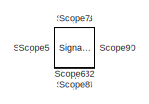
[diagram: root canvas - part 1/3, top left region]
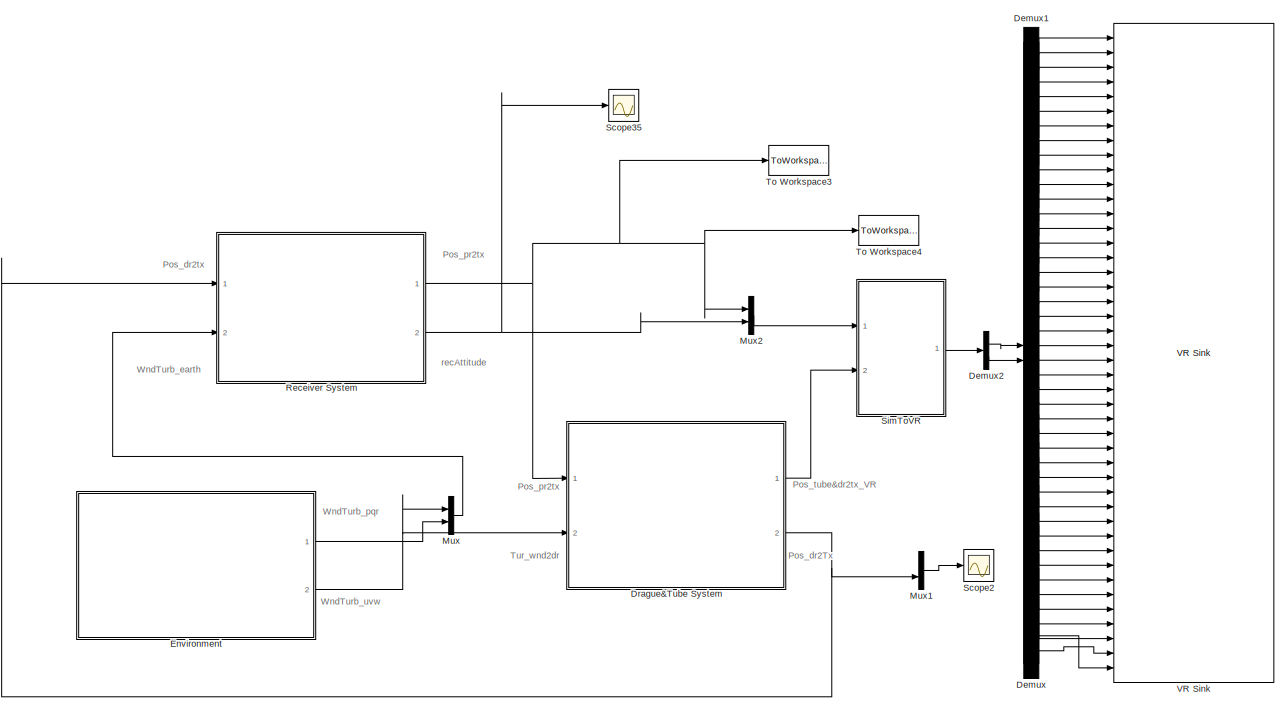
[diagram: root canvas - part 2/3, middle right region]
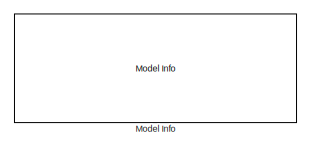
[diagram: root canvas - part 3/3, bottom center region]
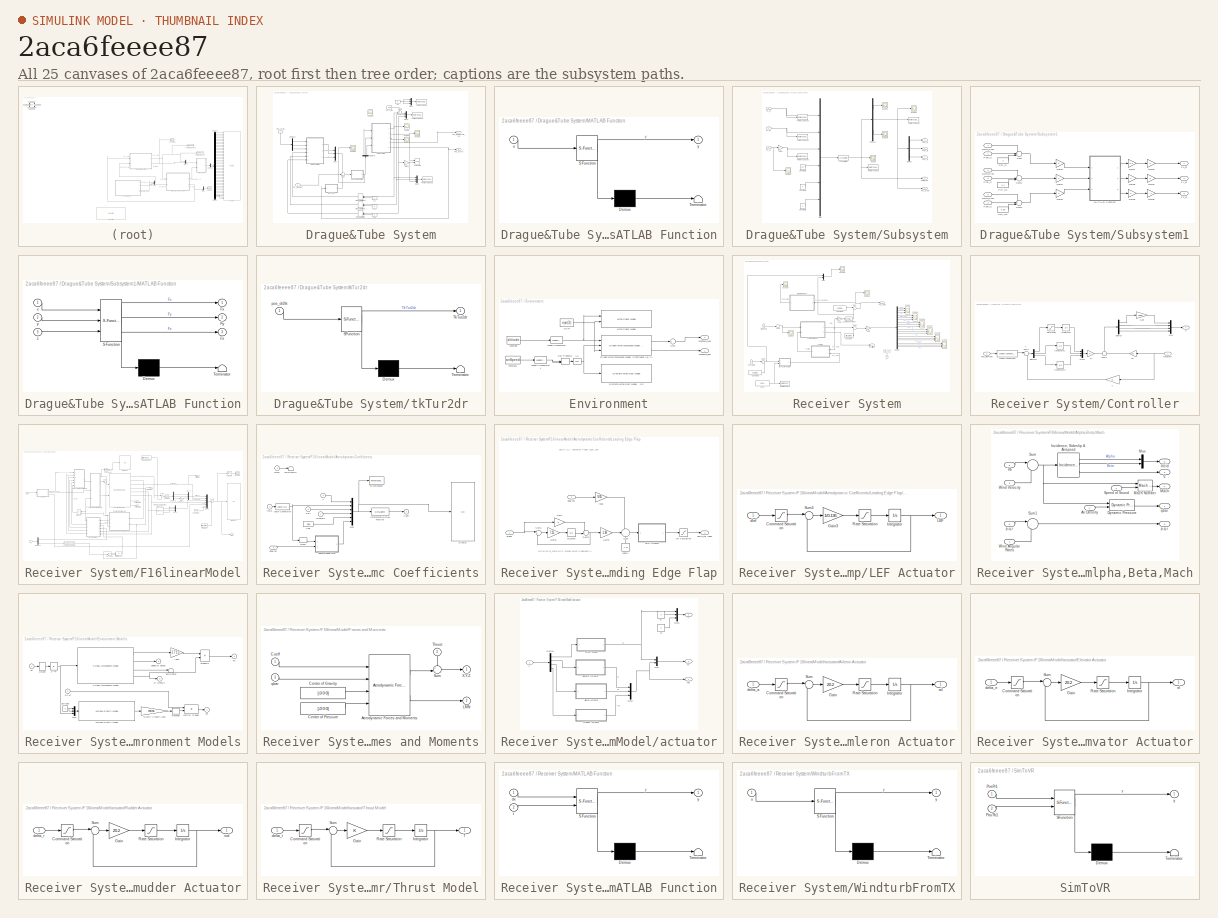
[diagram: thumbnail index - all 25 canvases of the model, root first then tree order]
MODEL slx_2aca6feeee87
KIND model
BLOCK [Demux] Demux
  DisplayOption = bar
  Outputs = 22
  Ports = [1, 22]
BLOCK [Demux] Demux1
  DisplayOption = bar
  Outputs = 22
  Ports = [1, 22]
BLOCK [Demux] Demux2
  DisplayOption = bar
  Outputs = [88,66]
  Ports = [1, 2]
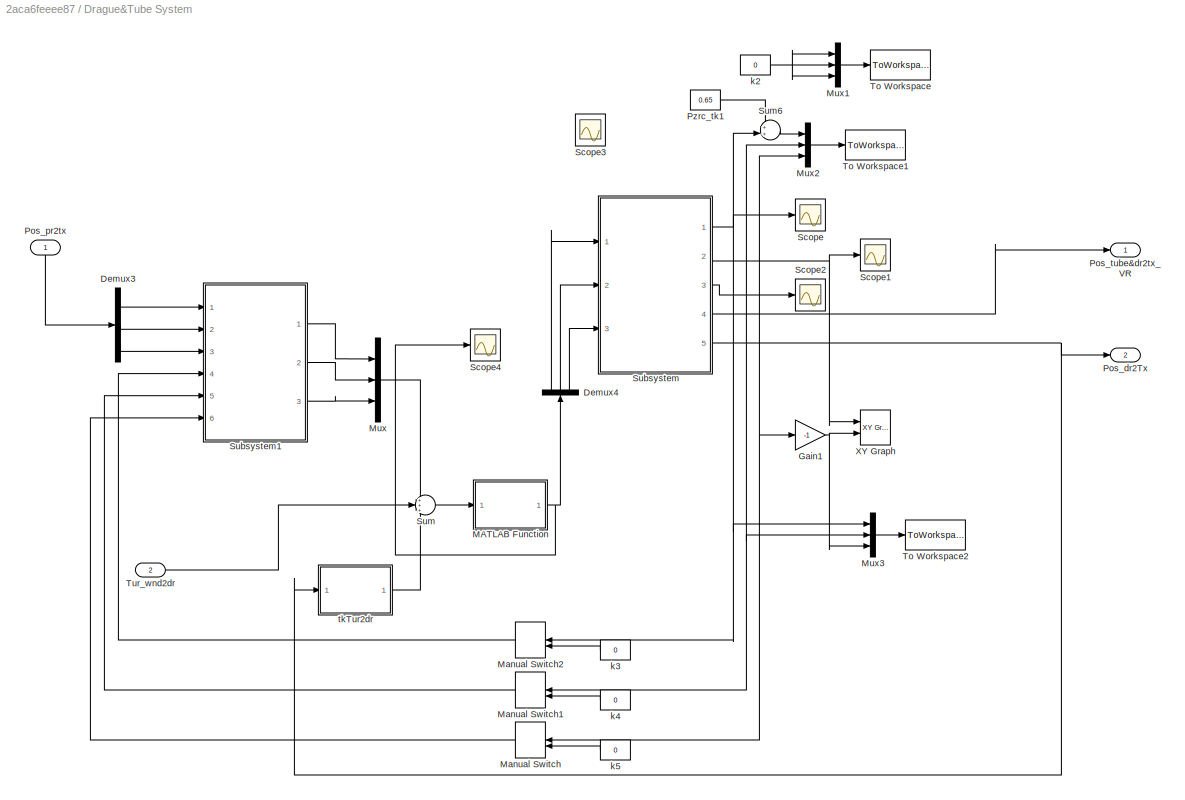
BLOCK [SubSystem] Drague&Tube System
  FunctionWithSeparateData = off
  MaskHideContents = off
  MinAlgLoopOccurrences = off
  Opaque = off
  Ports = [2, 2]
  PropExecContextOutsideSubsystem = off
  RTWSystemCode = Auto
  RequestExecContextInheritance = off
BLOCK [Demux] Drague&Tube System/Demux3
  DisplayOption = bar
  Outputs = 3
  Ports = [1, 3]
BLOCK [Demux] Drague&Tube System/Demux4
  DisplayOption = bar
  Outputs = 3
  Ports = [1, 3]
BLOCK [Gain] Drague&Tube System/Gain1
  Gain = -1
  OutDataTypeStr = Inherit: Inherit via internal rule
  ParamDataTypeStr = Inherit: Inherit via internal rule
  SaturateOnIntegerOverflow = off
BLOCK [SubSystem] Drague&Tube System/MATLAB Function
  ErrorFcn = Stateflow.Translate.translate
  FunctionWithSeparateData = off
  MaskHideContents = off
  MinAlgLoopOccurrences = off
  Opaque = off
  PermitHierarchicalResolution = ExplicitOnly
  Ports = [1, 1]
  PropExecContextOutsideSubsystem = off
  RTWSystemCode = Auto
  RequestExecContextInheritance = off
  SFBlockType = MATLAB Function
  TreatAsAtomicUnit = on
BLOCK [Demux] Drague&Tube System/MATLAB Function/ Demux 
  Outputs = 1
  Ports = [1, 1]
BLOCK [S-Function] Drague&Tube System/MATLAB Function/ SFunction 
  EnableBusSupport = on
  FunctionName = sf_sfun
  PortCounts = [1 2]
  Ports = [1, 2]
  Tag = Stateflow S-Function Bowwave2Drogue_v6_addControl_VR_tkTur2_F16_Real2 4
BLOCK [Terminator] Drague&Tube System/MATLAB Function/ Terminator 
BLOCK [Inport] Drague&Tube System/MATLAB Function/u
  IconDisplay = Port number
BLOCK [Outport] Drague&Tube System/MATLAB Function/y
  IconDisplay = Port number
BLOCK [ManualSwitch] Drague&Tube System/Manual Switch
BLOCK [ManualSwitch] Drague&Tube System/Manual Switch1
BLOCK [ManualSwitch] Drague&Tube System/Manual Switch2
BLOCK [Mux] Drague&Tube System/Mux
  DisplayOption = bar
  Inputs = 3
  Ports = [3, 1]
BLOCK [Mux] Drague&Tube System/Mux1
  DisplayOption = bar
  Inputs = 3
  Ports = [3, 1]
BLOCK [Mux] Drague&Tube System/Mux2
  DisplayOption = bar
  Inputs = 3
  Ports = [3, 1]
BLOCK [Mux] Drague&Tube System/Mux3
  DisplayOption = bar
  Inputs = 3
  Ports = [3, 1]
BLOCK [Outport] Drague&Tube System/Pos_dr2Tx
  IconDisplay = Port number
  Port = 2
BLOCK [Inport] Drague&Tube System/Pos_pr2tx
  IconDisplay = Port number
BLOCK [Outport] Drague&Tube System/Pos_tube&dr2tx_VR
  IconDisplay = Port number
BLOCK [Constant] Drague&Tube System/Pzrc_tk1
  Value = 0.65
BLOCK [Scope] Drague&Tube System/Scope
  DataFormat = StructureWithTime
  Floating = off
  NumInputPorts = 1
  Ports = [1]
  SampleTime = 0
  ShowLegends = off
  YMax = -13.295
  YMin = -13.32
BLOCK [Scope] Drague&Tube System/Scope1
  DataFormat = StructureWithTime
  Floating = off
  NumInputPorts = 1
  Ports = [1]
  SampleTime = 0
  SaveName = ScopeData1
  ShowLegends = off
  YMax = 1
  YMin = -1
BLOCK [Scope] Drague&Tube System/Scope2
  DataFormat = StructureWithTime
  Floating = off
  NumInputPorts = 1
  Ports = [1]
  SampleTime = 0
  SaveName = ScopeData2
  ShowLegends = off
  YMax = 5.22
  YMin = 5.155
BLOCK [Scope] Drague&Tube System/Scope3
  DataFormat = StructureWithTime
  Floating = off
  NumInputPorts = 1
  Ports = [1]
  SampleTime = 0
  SaveName = ScopeData17
  ShowLegends = off
  YMax = -9
  YMin = -15.5
BLOCK [Scope] Drague&Tube System/Scope4
  DataFormat = StructureWithTime
  Floating = off
  NumInputPorts = 1
  Ports = [1]
  SampleTime = 0
  SaveName = ScopeData20
  ShowLegends = off
  TimeRange = 50
  YMax = 15
  YMin = -50
BLOCK [SubSystem] Drague&Tube System/Subsystem
  FunctionWithSeparateData = off
  MaskHideContents = off
  MinAlgLoopOccurrences = off
  Opaque = off
  Ports = [3, 5]
  PropExecContextOutsideSubsystem = off
  RTWSystemCode = Auto
  RequestExecContextInheritance = off
BLOCK [Constant] Drague&Tube System/Subsystem/Constant3
  Value = 120
BLOCK [Constant] Drague&Tube System/Subsystem/Constant4
  Value = 0
BLOCK [Constant] Drague&Tube System/Subsystem/Constant5
  Value = 0
BLOCK [Demux] Drague&Tube System/Subsystem/Demux
  DisplayOption = bar
  Outputs = 3
  Ports = [1, 3]
BLOCK [Demux] Drague&Tube System/Subsystem/Demux1
  DisplayOption = bar
  Outputs = [57,3,40]
  Ports = [1, 3]
BLOCK [Inport] Drague&Tube System/Subsystem/Fx_dr
  IconDisplay = Port number
BLOCK [Inport] Drague&Tube System/Subsystem/Fy_dr
  IconDisplay = Port number
  Port = 2
BLOCK [Inport] Drague&Tube System/Subsystem/Fz_dr
  IconDisplay = Port number
  Port = 3
BLOCK [Gain] Drague&Tube System/Subsystem/Gain1
  Gain = -1
  OutDataTypeStr = Inherit: Inherit via internal rule
  ParamDataTypeStr = Inherit: Inherit via internal rule
  SaturateOnIntegerOverflow = off
BLOCK [Mux] Drague&Tube System/Subsystem/Mux
  DisplayOption = bar
  Inputs = 6
  Ports = [6, 1]
BLOCK [Outport] Drague&Tube System/Subsystem/Pos_dr2tx
  IconDisplay = Port number
  Port = 5
BLOCK [Outport] Drague&Tube System/Subsystem/Pxdr_tk
  IconDisplay = Port number
BLOCK [Outport] Drague&Tube System/Subsystem/Pydr_tk
  IconDisplay = Port number
  Port = 2
BLOCK [Outport] Drague&Tube System/Subsystem/Pzdr_tk
  IconDisplay = Port number
  Port = 3
BLOCK [S-Function] Drague&Tube System/Subsystem/S-Function
  EnableBusSupport = off
  FunctionName = hose3D_n_air_Fv_correction
  Ports = [1, 1]
BLOCK [Scope] Drague&Tube System/Subsystem/Scope
  DataFormat = StructureWithTime
  Floating = off
  NumInputPorts = 1
  Ports = [1]
  SampleTime = 0
  SaveName = ScopeData4
  ShowLegends = off
  YMax = 1
  YMin = -14
  ZoomMode = yonly
BLOCK [Scope] Drague&Tube System/Subsystem/Scope1
  DataFormat = StructureWithTime
  Floating = off
  NumInputPorts = 1
  Ports = [1]
  SampleTime = 0
  SaveName = ScopeData3
  ShowLegends = off
  YMax = 1
  YMin = -14
  ZoomMode = yonly
BLOCK [Scope] Drague&Tube System/Subsystem/Scope2
  DataFormat = StructureWithTime
  Floating = off
  NumInputPorts = 1
  Ports = [1]
  SampleTime = 0
  SaveName = ScopeData8
  ShowLegends = off
  YMax = 0
  YMin = -65
BLOCK [Scope] Drague&Tube System/Subsystem/Scope3
  DataFormat = StructureWithTime
  Floating = off
  NumInputPorts = 1
  Ports = [1]
  SampleTime = 0
  SaveName = ScopeData6
  ShowLegends = off
  YMax = 1350
  YMin = 1025
  ZoomMode = yonly
BLOCK [Scope] Drague&Tube System/Subsystem/Scope6
  DataFormat = StructureWithTime
  Floating = off
  NumInputPorts = 1
  Ports = [1]
  SampleTime = 0
  SaveName = ScopeData9
  ShowLegends = off
  YMax = 1
  YMin = -14
  ZoomMode = yonly
BLOCK [ToWorkspace] Drague&Tube System/Subsystem/To Workspace
  MaxDataPoints = inf
  Ports = [1]
  SampleTime = -1
  VariableName = output_3D
BLOCK [ToWorkspace] Drague&Tube System/Subsystem/To Workspace1
  MaxDataPoints = inf
  Ports = [1]
  SampleTime = -1
  VariableName = output_dr1
BLOCK [ToWorkspace] Drague&Tube System/Subsystem/To Workspace3
  MaxDataPoints = inf
  Ports = [1]
  SampleTime = -1
  VariableName = input_x
BLOCK [ToWorkspace] Drague&Tube System/Subsystem/To Workspace4
  MaxDataPoints = inf
  Ports = [1]
  SampleTime = -1
  VariableName = input_y
BLOCK [ToWorkspace] Drague&Tube System/Subsystem/To Workspace5
  MaxDataPoints = inf
  Ports = [1]
  SampleTime = -1
  VariableName = input_z
BLOCK [Outport] Drague&Tube System/Subsystem/output_3D
  IconDisplay = Port number
  Port = 4
BLOCK [SubSystem] Drague&Tube System/Subsystem1
  FunctionWithSeparateData = off
  MaskHideContents = off
  MinAlgLoopOccurrences = off
  Opaque = off
  Ports = [6, 3]
  PropExecContextOutsideSubsystem = off
  RTWSystemCode = Auto
  RequestExecContextInheritance = off
BLOCK [Inport] Drague&Tube System/Subsystem1/Delta_Pxdr
  IconDisplay = Port number
  Port = 4
BLOCK [Inport] Drague&Tube System/Subsystem1/Delta_Pydr
  IconDisplay = Port number
  Port = 5
BLOCK [Inport] Drague&Tube System/Subsystem1/Delta_Pzdr
  IconDisplay = Port number
  Port = 6
BLOCK [Outport] Drague&Tube System/Subsystem1/Fx_dr
  IconDisplay = Port number
  SignalType = real
BLOCK [Outport] Drague&Tube System/Subsystem1/Fy_dr
  IconDisplay = Port number
  Port = 2
  SignalType = real
BLOCK [Outport] Drague&Tube System/Subsystem1/Fz_dr
  IconDisplay = Port number
  Port = 3
  SignalType = real
BLOCK [Gain] Drague&Tube System/Subsystem1/Gain1
  OutDataTypeStr = Inherit: Inherit via internal rule
  ParamDataTypeStr = Inherit: Inherit via internal rule
  SaturateOnIntegerOverflow = off
BLOCK [Gain] Drague&Tube System/Subsystem1/Gain2
  OutDataTypeStr = Inherit: Inherit via internal rule
  ParamDataTypeStr = Inherit: Inherit via internal rule
  SaturateOnIntegerOverflow = off
BLOCK [Gain] Drague&Tube System/Subsystem1/Gain3
  OutDataTypeStr = Inherit: Inherit via internal rule
  ParamDataTypeStr = Inherit: Inherit via internal rule
  SaturateOnIntegerOverflow = off
BLOCK [Gain] Drague&Tube System/Subsystem1/Gain4
  OutDataTypeStr = Inherit: Inherit via internal rule
  ParamDataTypeStr = Inherit: Inherit via internal rule
  SaturateOnIntegerOverflow = off
BLOCK [Gain] Drague&Tube System/Subsystem1/Gain5
  Gain = -1
  OutDataTypeStr = Inherit: Inherit via internal rule
  ParamDataTypeStr = Inherit: Inherit via internal rule
  SaturateOnIntegerOverflow = off
BLOCK [Gain] Drague&Tube System/Subsystem1/Gain6
  OutDataTypeStr = Inherit: Inherit via internal rule
  ParamDataTypeStr = Inherit: Inherit via internal rule
  SaturateOnIntegerOverflow = off
BLOCK [Gain] Drague&Tube System/Subsystem1/Gain7
  Gain = 0.2
  OutDataTypeStr = Inherit: Inherit via internal rule
  ParamDataTypeStr = Inherit: Inherit via internal rule
  SaturateOnIntegerOverflow = off
BLOCK [Gain] Drague&Tube System/Subsystem1/Gain8
  OutDataTypeStr = Inherit: Inherit via internal rule
  ParamDataTypeStr = Inherit: Inherit via internal rule
  SaturateOnIntegerOverflow = off
BLOCK [Gain] Drague&Tube System/Subsystem1/Gain9
  OutDataTypeStr = Inherit: Inherit via internal rule
  ParamDataTypeStr = Inherit: Inherit via internal rule
  SaturateOnIntegerOverflow = off
BLOCK [SubSystem] Drague&Tube System/Subsystem1/MATLAB Function
  ErrorFcn = Stateflow.Translate.translate
  FunctionWithSeparateData = off
  MaskHideContents = off
  MinAlgLoopOccurrences = off
  Opaque = off
  PermitHierarchicalResolution = ExplicitOnly
  Ports = [3, 3]
  PropExecContextOutsideSubsystem = off
  RTWSystemCode = Auto
  RequestExecContextInheritance = off
  SFBlockType = MATLAB Function
  TreatAsAtomicUnit = on
BLOCK [Demux] Drague&Tube System/Subsystem1/MATLAB Function/ Demux 
  Outputs = 1
  Ports = [1, 1]
BLOCK [S-Function] Drague&Tube System/Subsystem1/MATLAB Function/ SFunction 
  EnableBusSupport = on
  FunctionName = sf_sfun
  PortCounts = [3 4]
  Ports = [3, 4]
  Tag = Stateflow S-Function Bowwave2Drogue_v6_addControl_VR_tkTur2_F16_Real2 2
BLOCK [Terminator] Drague&Tube System/Subsystem1/MATLAB Function/ Terminator 
BLOCK [Outport] Drague&Tube System/Subsystem1/MATLAB Function/Fx
  IconDisplay = Port number
BLOCK [Outport] Drague&Tube System/Subsystem1/MATLAB Function/Fy
  IconDisplay = Port number
  Port = 2
BLOCK [Outport] Drague&Tube System/Subsystem1/MATLAB Function/Fz
  IconDisplay = Port number
  Port = 3
BLOCK [Inport] Drague&Tube System/Subsystem1/MATLAB Function/x
  IconDisplay = Port number
BLOCK [Inport] Drague&Tube System/Subsystem1/MATLAB Function/y
  IconDisplay = Port number
  Port = 2
BLOCK [Inport] Drague&Tube System/Subsystem1/MATLAB Function/z
  IconDisplay = Port number
  Port = 3
BLOCK [Inport] Drague&Tube System/Subsystem1/Pxdr_rc
  IconDisplay = Port number
BLOCK [Constant] Drague&Tube System/Subsystem1/Pxfl_rc
  Value = 2
BLOCK [Inport] Drague&Tube System/Subsystem1/Pydr_rc
  IconDisplay = Port number
  Port = 2
BLOCK [Constant] Drague&Tube System/Subsystem1/Pyfl_rc1
  Value = 0.4
BLOCK [Inport] Drague&Tube System/Subsystem1/Pzdr_rc
  IconDisplay = Port number
  Port = 3
BLOCK [Constant] Drague&Tube System/Subsystem1/Pzfl_rc2
  Value = 0.86
BLOCK [Sum] Drague&Tube System/Subsystem1/Sum
  IconShape = round
  InputSameDT = off
  Inputs = -++
  OutDataTypeStr = Inherit: Inherit via internal rule
  Ports = [3, 1]
  SaturateOnIntegerOverflow = off
BLOCK [Sum] Drague&Tube System/Subsystem1/Sum1
  IconShape = round
  InputSameDT = off
  Inputs = +-+
  OutDataTypeStr = Inherit: Inherit via internal rule
  Ports = [3, 1]
  SaturateOnIntegerOverflow = off
BLOCK [Sum] Drague&Tube System/Subsystem1/Sum2
  IconShape = round
  InputSameDT = off
  Inputs = -++
  OutDataTypeStr = Inherit: Inherit via internal rule
  Ports = [3, 1]
  SaturateOnIntegerOverflow = off
BLOCK [Sum] Drague&Tube System/Sum
  IconShape = round
  InputSameDT = off
  Inputs = +++
  OutDataTypeStr = Inherit: Inherit via internal rule
  Ports = [3, 1]
  SaturateOnIntegerOverflow = off
BLOCK [Sum] Drague&Tube System/Sum6
  IconShape = round
  InputSameDT = off
  Inputs = ++|
  OutDataTypeStr = Inherit: Inherit via internal rule
  Ports = [2, 1]
  SaturateOnIntegerOverflow = off
BLOCK [ToWorkspace] Drague&Tube System/To Workspace
  MaxDataPoints = inf
  Ports = [1]
  SampleTime = -1
  VariableName = alt
BLOCK [ToWorkspace] Drague&Tube System/To Workspace1
  MaxDataPoints = inf
  Ports = [1]
  SampleTime = -1
  VariableName = pos_Tg
BLOCK [ToWorkspace] Drague&Tube System/To Workspace2
  MaxDataPoints = inf
  Ports = [1]
  SampleTime = -1
  VariableName = pos_dr
BLOCK [Inport] Drague&Tube System/Tur_wnd2dr
  IconDisplay = Port number
  Port = 2
  SignalType = real
BLOCK [Reference] Drague&Tube System/XY Graph  REF=simulink/Sinks/XY Graph
  Ports = [2]
  SourceBlock = simulink/Sinks/XY Graph
  SourceType = XY scope.
  st = -1
  xmax = 1
  xmin = -1
  ymax = 1-4.65
  ymin = -1-4.65
BLOCK [Constant] Drague&Tube System/k2
  Value = 0
BLOCK [Constant] Drague&Tube System/k3
  Value = 0
BLOCK [Constant] Drague&Tube System/k4
  Value = 0
BLOCK [Constant] Drague&Tube System/k5
  Value = 0
BLOCK [SubSystem] Drague&Tube System/tkTur2dr
  ErrorFcn = Stateflow.Translate.translate
  FunctionWithSeparateData = off
  MaskHideContents = off
  MinAlgLoopOccurrences = off
  Opaque = off
  PermitHierarchicalResolution = ExplicitOnly
  Ports = [1, 1]
  PropExecContextOutsideSubsystem = off
  RTWSystemCode = Auto
  RequestExecContextInheritance = off
  SFBlockType = MATLAB Function
  TreatAsAtomicUnit = on
BLOCK [Demux] Drague&Tube System/tkTur2dr/ Demux 
  Outputs = 1
  Ports = [1, 1]
BLOCK [S-Function] Drague&Tube System/tkTur2dr/ SFunction 
  EnableBusSupport = on
  FunctionName = sf_sfun
  PortCounts = [1 2]
  Ports = [1, 2]
  Tag = Stateflow S-Function Bowwave2Drogue_v6_addControl_VR_tkTur2_F16_Real2 6
BLOCK [Terminator] Drague&Tube System/tkTur2dr/ Terminator 
BLOCK [Outport] Drague&Tube System/tkTur2dr/TkTur2dr
  IconDisplay = Port number
BLOCK [Inport] Drague&Tube System/tkTur2dr/pos_dr2tk
  IconDisplay = Port number
BLOCK [SubSystem] Environment
  FunctionWithSeparateData = off
  MaskHideContents = off
  MinAlgLoopOccurrences = off
  Opaque = off
  Ports = [0, 2]
  PropExecContextOutsideSubsystem = off
  RTWSystemCode = Auto
  RequestExecContextInheritance = off
BLOCK [Constant] Environment/DCM
  Value = eye(3)
BLOCK [Reference] Environment/Discrete Wind Gust Model - On  REF=aerolibwind2/Discrete Wind Gust Model
  Gx = on
  Gy = on
  Gz = on
  Ports = [1, 1]
  SourceBlock = aerolibwind2/Discrete Wind Gust Model
  SourceType = Discrete Wind Gust Model
  d_m = [120 120 80]
  t_0 = 20
  units = Metric (MKS)
  v_m = [3.5 3.0 3.0]
BLOCK [DotProduct] Environment/Dot Product2
  InputSameDT = off
  OutDataTypeStr = Inherit: Inherit via internal rule
  SaturateOnIntegerOverflow = on
BLOCK [Reference] Environment/Dryden Wind Turbulence Model (Continuous (+q -r))  REF=aerolibwind2/Dryden Wind Turbulence Model 
(Continuous (+q -r))
  L_high = 1000
  Ports = [3, 2]
  Seed = 1+fix(3650*rand(1,4))
  SourceBlock = aerolibwind2/Dryden Wind Turbulence Model \n(Continuous (+q -r))
  SourceType = Wind Turbulence Model
  T_on = on
  TurbProb = 10^-1
  W20 = 5
  Wdeg = 0
  Wingspan = 6
  model = Continuous Dryden (+q -r)
  spec = MIL-F-8785C
  ts = 0.02
  units = Metric (MKS)
BLOCK [Reference] Environment/Length Conversion  REF=aerolibconvert2/Length Conversion
  IU = ft
  OU = m
  Ports = [1, 1]
  SourceBlock = aerolibconvert2/Length Conversion
  SourceType = Length Conversion
BLOCK [Reference] Environment/Length Conversion1  REF=aerolibconvert2/Length Conversion
  IU = ft
  OU = m
  Ports = [1, 1]
  SourceBlock = aerolibconvert2/Length Conversion
  SourceType = Length Conversion
BLOCK [Sum] Environment/Sum
  IconShape = round
  Inputs = +++
  Ports = [3, 1]
BLOCK [Math] Environment/V2
  Operator = sqrt
  Ports = [1, 1]
BLOCK [Reference] Environment/Wind Shear Model  REF=aerolibwind2/Wind Shear Model
  Ports = [2, 1]
  SourceBlock = aerolibwind2/Wind Shear Model
  SourceType = Wind Shear Model
  W_20 = 1
  Wdeg = 0
  phase = Category C - Terminal Flight Phase
  units = Metric (MKS)
BLOCK [Outport] Environment/WndTurb_pqr
  IconDisplay = Port number
BLOCK [Outport] Environment/WndTurb_uvw
  IconDisplay = Port number
  Port = 2
BLOCK [Constant] Environment/constan1
  Value = airSpeed
BLOCK [Constant] Environment/constant
  Value = altitude
BLOCK [Reference] Model Info  REF=simulink/Model-Wide
Utilities/Model Info
  BlockCM = None
  DisplayStringWithTags = Ppr_rc=[6.06 0.54 -0.86]\nPns_rc=[8.00 0.00  0.00]\nPfl_rc=[3.75 0.00 -0.86]\nPdr0_tk=[-13.549 0.00 5]
  Frame = on
  HorizontalTextAlignment = Center
  InitialBlockCM = None
  LeftAlignmentValue = 0.5
  MaskDisplayString = Ppr_rc=[6.06 0.54 -0.86]\nPns_rc=[8.00 0.00  0.00]\nPfl_rc=[3.75 0.00 -0.86]\nPdr0_tk=[-13.549 0.00 5]
  Ports = []
  SourceBlock = simulink/Model-Wide\nUtilities/Model Info
  SourceBlockDiagram = Bowwave2Drogue_v6_addControl_VR_tkTur2_F16_Real2
  SourceType = CMBlock
  TagMaxNumber = 20
BLOCK [Mux] Mux
  DisplayOption = bar
  Inputs = 2
  Ports = [2, 1]
BLOCK [Mux] Mux1
  DisplayOption = bar
  Inputs = 2
  Ports = [2, 1]
BLOCK [Mux] Mux2
  DisplayOption = bar
  Inputs = 2
  Ports = [2, 1]
BLOCK [SubSystem] Receiver System
  FunctionWithSeparateData = off
  MaskHideContents = off
  MinAlgLoopOccurrences = off
  Opaque = off
  Ports = [2, 2]
  PropExecContextOutsideSubsystem = off
  RTWSystemCode = Auto
  RequestExecContextInheritance = off
BLOCK [Gain] Receiver System/C2m
  Gain = C2m
  Multiplication = Matrix(K*u) (u vector)
  OutDataTypeStr = Inherit: Inherit via internal rule
  ParamDataTypeStr = Inherit: Inherit via internal rule
  SaturateOnIntegerOverflow = off
BLOCK [Clock] Receiver System/Clock
  Decimation = 50
  DisplayTime = on
BLOCK [Constant] Receiver System/Constant
  Value = trim_state1
BLOCK [Constant] Receiver System/Constant2
  Value = [-20,0,0]
BLOCK [Constant] Receiver System/Constant3
  Value = [-20,0,0]
BLOCK [SubSystem] Receiver System/Controller
  FunctionWithSeparateData = off
  MaskHideContents = off
  MinAlgLoopOccurrences = off
  Opaque = off
  Ports = [2, 1]
  PropExecContextOutsideSubsystem = off
  RTWSystemCode = Auto
  RequestExecContextInheritance = off
BLOCK [Gain] Receiver System/Controller/C
  Gain = C
  Multiplication = Matrix(K*u) (u vector)
  OutDataTypeStr = Inherit: Inherit via internal rule
  ParamDataTypeStr = Inherit: Inherit via internal rule
  SaturateOnIntegerOverflow = off
BLOCK [Demux] Receiver System/Controller/Demux
  DisplayOption = bar
  Ports = [1, 4]
BLOCK [Demux] Receiver System/Controller/Demux1
  DisplayOption = bar
  Outputs = 3
  Ports = [1, 3]
BLOCK [Inport] Receiver System/Controller/F16State
  IconDisplay = Port number
BLOCK [Gain] Receiver System/Controller/Gain
  Gain = 1000
  OutDataTypeStr = Inherit: Inherit via internal rule
  ParamDataTypeStr = Inherit: Inherit via internal rule
  SaturateOnIntegerOverflow = off
BLOCK [Integrator] Receiver System/Controller/Integrator
  Ports = [1, 1]
BLOCK [Integrator] Receiver System/Controller/Integrator1
  Ports = [1, 1]
BLOCK [Integrator] Receiver System/Controller/Integrator2
  Ports = [1, 1]
BLOCK [Gain] Receiver System/Controller/Ki
  Gain = Ki
  Multiplication = Matrix(K*u) (u vector)
  OutDataTypeStr = Inherit: Inherit via internal rule
  ParamDataTypeStr = Inherit: Inherit via internal rule
  SaturateOnIntegerOverflow = off
BLOCK [Gain] Receiver System/Controller/Kp
  Gain = Kp
  Multiplication = Matrix(K*u) (u vector)
  OutDataTypeStr = Inherit: Inherit via internal rule
  ParamDataTypeStr = Inherit: Inherit via internal rule
  SaturateOnIntegerOverflow = off
BLOCK [Reference] Receiver System/Controller/Length Conversion  REF=aerolibconvert2/Length Conversion
  IU = m
  OU = ft
  Ports = [1, 1]
  SourceBlock = aerolibconvert2/Length Conversion
  SourceType = Length Conversion
BLOCK [Mux] Receiver System/Controller/Mux
  DisplayOption = bar
  Ports = [4, 1]
BLOCK [Mux] Receiver System/Controller/Mux3
  DisplayOption = bar
  Inputs = 3
  Ports = [3, 1]
BLOCK [Inport] Receiver System/Controller/Pos_Demand
  IconDisplay = Port number
  Port = 2
BLOCK [Saturate] Receiver System/Controller/Saturation
  InputPortMap = u0
  LowerLimit = -10
  Ports = [1, 1]
  UpperLimit = 10
BLOCK [Sum] Receiver System/Controller/Sum2
  IconShape = round
  InputSameDT = off
  Inputs = |+-
  OutDataTypeStr = Inherit: Inherit via internal rule
  Ports = [2, 1]
  SaturateOnIntegerOverflow = off
BLOCK [Sum] Receiver System/Controller/Sum3
  IconShape = round
  InputSameDT = off
  Inputs = +|-
  OutDataTypeStr = Inherit: Inherit via internal rule
  Ports = [2, 1]
  SaturateOnIntegerOverflow = off
BLOCK [Outport] Receiver System/Controller/U
  IconDisplay = Port number
BLOCK [Demux] Receiver System/Demux
  Outputs = 18
  Ports = [1, 18]
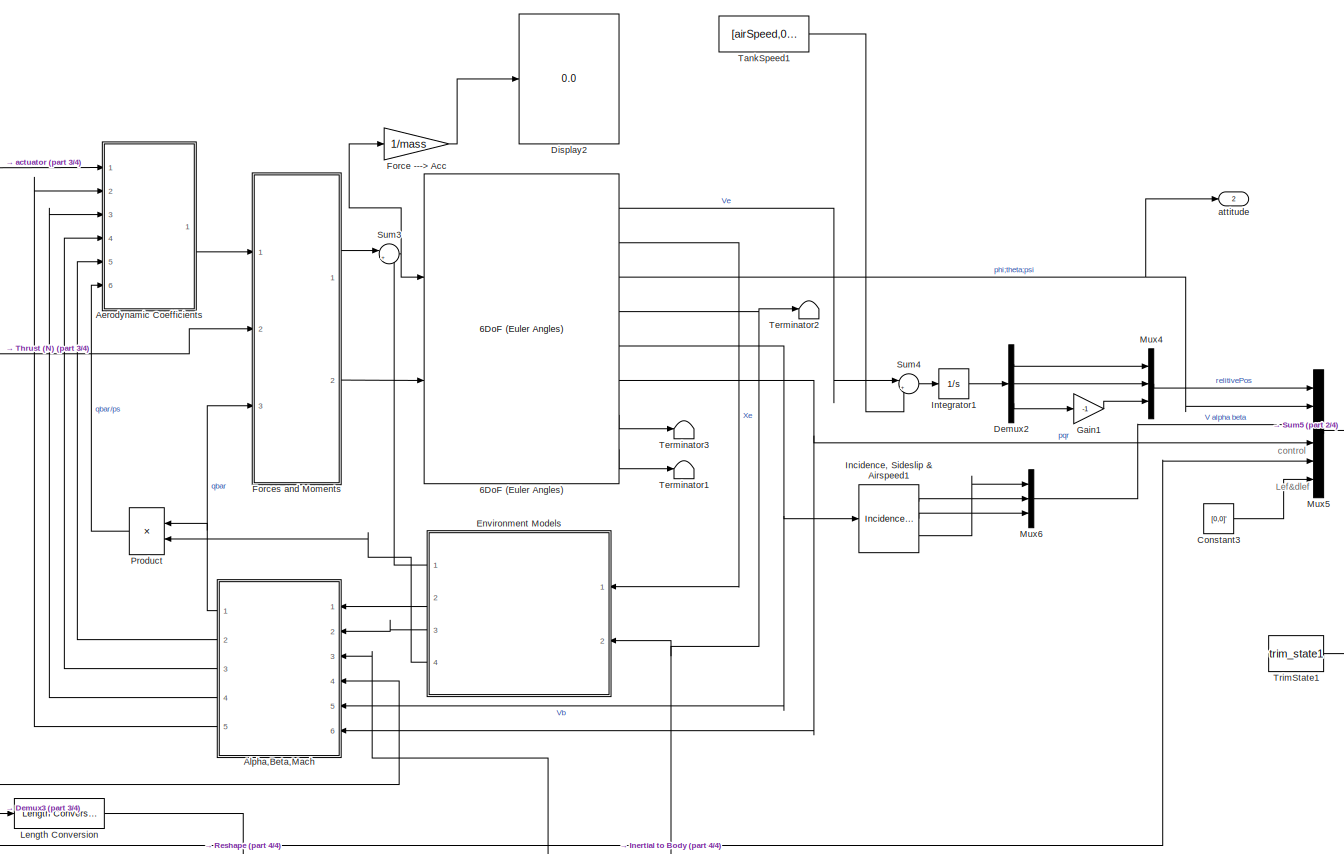
[diagram: Receiver System/F16linearModel - part 1/4, center side, full height]
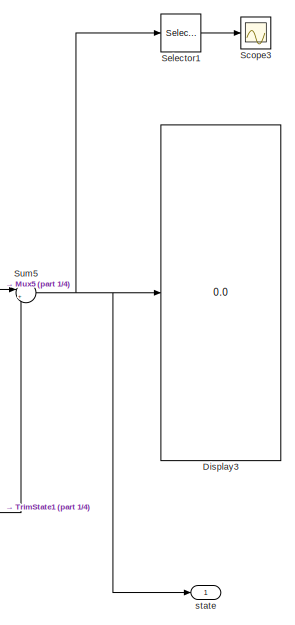
[diagram: Receiver System/F16linearModel - part 2/4, middle right region]
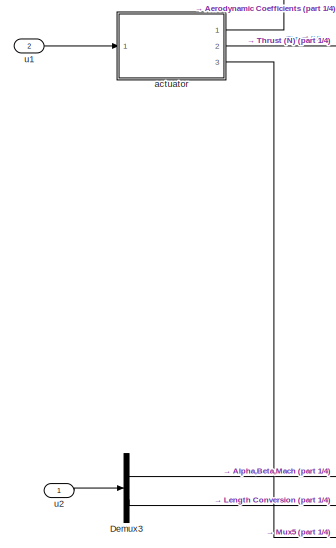
[diagram: Receiver System/F16linearModel - part 3/4, middle left region]
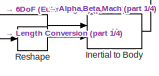
[diagram: Receiver System/F16linearModel - part 4/4, bottom center region]
BLOCK [SubSystem] Receiver System/F16linearModel
  FunctionWithSeparateData = off
  MaskHideContents = off
  MinAlgLoopOccurrences = off
  Opaque = off
  Ports = [2, 2]
  PropExecContextOutsideSubsystem = off
  RTWSystemCode = Auto
  RequestExecContextInheritance = off
BLOCK [Reference] Receiver System/F16linearModel/6DoF (Euler Angles)  REF=aerolib6dof2/6DoF (Euler Angles)
  Ports = [2, 8]
  SourceBlock = aerolib6dof2/6DoF (Euler Angles)
  SourceType = 6DoF EoM (Body Axis)
  Vm_0 = Vmw
  eul_0 = Euler_0
  inertia = Inertia
  inertia_e = eye(3)
  inertia_f = 2*eye(3)
  k_quat = 1.0
  mass_0 = mass
  mass_e = 0.5
  mass_f = 2.0
  mtype = Fixed
  pm_0 = pm_0
  rep = Euler Angles
  units = English (Velocity in ft/s)
  xme_0 = xme_0
BLOCK [SubSystem] Receiver System/F16linearModel/Aerodynamic Coefficients
  FunctionWithSeparateData = off
  MaskHideContents = off
  MinAlgLoopOccurrences = off
  Opaque = off
  Ports = [6, 1]
  PropExecContextOutsideSubsystem = off
  RTWSystemCode = Auto
  RequestExecContextInheritance = off
BLOCK [Inport] Receiver System/F16linearModel/Aerodynamic Coefficients/Actuators
  IconDisplay = Port number
BLOCK [Reference] Receiver System/F16linearModel/Aerodynamic Coefficients/Angle Conversion  REF=aerolibconvert2/Angle Conversion
  IU = rad
  OU = deg
  Ports = [1, 1]
  SourceBlock = aerolibconvert2/Angle Conversion
  SourceType = Angle Conversion
BLOCK [Outport] Receiver System/F16linearModel/Aerodynamic Coefficients/Coeff
  IconDisplay = Port number
  InitialOutput = 0
BLOCK [Display] Receiver System/F16linearModel/Aerodynamic Coefficients/Display
  Decimation = 12
  Lockdown = off
  Ports = [1]
BLOCK [Inport] Receiver System/F16linearModel/Aerodynamic Coefficients/Incid
  IconDisplay = Port number
  Port = 2
BLOCK [MATLABFcn] Receiver System/F16linearModel/Aerodynamic Coefficients/Interpreted MATLAB Function
  MATLABFcn = F16Coef1
  OutputDimensions = 6
  Ports = [1, 1]
BLOCK [SubSystem] Receiver System/F16linearModel/Aerodynamic Coefficients/Leading Edge Flap
  FunctionWithSeparateData = off
  MaskHideContents = off
  MinAlgLoopOccurrences = off
  Opaque = off
  Ports = [2, 1]
  PropExecContextOutsideSubsystem = off
  RTWSystemCode = Auto
  RequestExecContextInheritance = off
BLOCK [Gain] Receiver System/F16linearModel/Aerodynamic Coefficients/Leading Edge Flap/Gain
  Gain = 2
BLOCK [Gain] Receiver System/F16linearModel/Aerodynamic Coefficients/Leading Edge Flap/Gain1
  Gain = 7.25
BLOCK [Gain] Receiver System/F16linearModel/Aerodynamic Coefficients/Leading Edge Flap/Gain2
  Gain = 1.38
BLOCK [SubSystem] Receiver System/F16linearModel/Aerodynamic Coefficients/Leading Edge Flap/LEF Actuator
  FunctionWithSeparateData = off
  MaskHideContents = off
  MinAlgLoopOccurrences = off
  Opaque = off
  Ports = [1, 1]
  PropExecContextOutsideSubsystem = off
  RTWSystemCode = Auto
  RequestExecContextInheritance = off
BLOCK [Saturate] Receiver System/F16linearModel/Aerodynamic Coefficients/Leading Edge Flap/LEF Actuator/Command Saturation
  InputPortMap = u0
  LowerLimit = 0
  Ports = [1, 1]
  UpperLimit = 25
BLOCK [Gain] Receiver System/F16linearModel/Aerodynamic Coefficients/Leading Edge Flap/LEF Actuator/Gain3
  Gain = 1/0.136
BLOCK [Integrator] Receiver System/F16linearModel/Aerodynamic Coefficients/Leading Edge Flap/LEF Actuator/Integrator 
  InitialCondition = dLEF
  LowerSaturationLimit = -21.5
  Ports = [1, 1]
  UpperSaturationLimit = 21.5
BLOCK [Outport] Receiver System/F16linearModel/Aerodynamic Coefficients/Leading Edge Flap/LEF Actuator/LEF
  IconDisplay = Port number
BLOCK [Saturate] Receiver System/F16linearModel/Aerodynamic Coefficients/Leading Edge Flap/LEF Actuator/Rate Saturation
  InputPortMap = u0
  LowerLimit = -25
  Ports = [1, 1]
  UpperLimit = 25
BLOCK [Sum] Receiver System/F16linearModel/Aerodynamic Coefficients/Leading Edge Flap/LEF Actuator/Sum3
  IconShape = round
  Inputs = |+-
  Ports = [2, 1]
BLOCK [Inport] Receiver System/F16linearModel/Aerodynamic Coefficients/Leading Edge Flap/LEF Actuator/dlef
  IconDisplay = Port number
BLOCK [Integrator] Receiver System/F16linearModel/Aerodynamic Coefficients/Leading Edge Flap/LF_state
  InitialCondition = -alpha0
  Ports = [1, 1]
BLOCK [Sum] Receiver System/F16linearModel/Aerodynamic Coefficients/Leading Edge Flap/Sum
  IconShape = round
  Inputs = -|+|+
  Ports = [3, 1]
BLOCK [Sum] Receiver System/F16linearModel/Aerodynamic Coefficients/Leading Edge Flap/Sum1
  IconShape = round
  Inputs = |+-
  Ports = [2, 1]
BLOCK [Sum] Receiver System/F16linearModel/Aerodynamic Coefficients/Leading Edge Flap/Sum2
  IconShape = round
  Inputs = ++|
  Ports = [2, 1]
BLOCK [Inport] Receiver System/F16linearModel/Aerodynamic Coefficients/Leading Edge Flap/alpha
  IconDisplay = Port number
BLOCK [Constant] Receiver System/F16linearModel/Aerodynamic Coefficients/Leading Edge Flap/coeff1
  Value = 1.45
BLOCK [Outport] Receiver System/F16linearModel/Aerodynamic Coefficients/Leading Edge Flap/delta_lef (deg)
  IconDisplay = Port number
BLOCK [Saturate] Receiver System/F16linearModel/Aerodynamic Coefficients/Leading Edge Flap/lef Saturation
  InputPortMap = u0
  LowerLimit = 0
  Ports = [1, 1]
  UpperLimit = 25
BLOCK [Inport] Receiver System/F16linearModel/Aerodynamic Coefficients/Leading Edge Flap/qbar//ps
  IconDisplay = Port number
  Port = 2
BLOCK [Gain] Receiver System/F16linearModel/Aerodynamic Coefficients/Leading Edge Flap/r2d6
  Gain = 9.05
BLOCK [Inport] Receiver System/F16linearModel/Aerodynamic Coefficients/Mach
  IconDisplay = Port number
  Port = 3
BLOCK [Mux] Receiver System/F16linearModel/Aerodynamic Coefficients/Mux
  DisplayOption = bar
  Inputs = 6
  Ports = [6, 1]
BLOCK [Terminator] Receiver System/F16linearModel/Aerodynamic Coefficients/Terminator2
BLOCK [ToWorkspace] Receiver System/F16linearModel/Aerodynamic Coefficients/To Workspace
  MaxDataPoints = inf
  Ports = [1]
  SampleTime = -1
  VariableName = simout
BLOCK [Inport] Receiver System/F16linearModel/Aerodynamic Coefficients/V
  IconDisplay = Port number
  Port = 4
BLOCK [Selector] Receiver System/F16linearModel/Aerodynamic Coefficients/alpha
  IndexOptions = Index vector (dialog)
  Indices = 1
  InputPortWidth = 2
  OutputSizes = 1
  Ports = [1, 1]
BLOCK [Constant] Receiver System/F16linearModel/Aerodynamic Coefficients/flag
  Value = fi_flag
BLOCK [Inport] Receiver System/F16linearModel/Aerodynamic Coefficients/p,q,r
  IconDisplay = Port number
  Port = 5
BLOCK [Inport] Receiver System/F16linearModel/Aerodynamic Coefficients/qbar//ps
  IconDisplay = Port number
  Port = 6
BLOCK [SubSystem] Receiver System/F16linearModel/Alpha,Beta,Mach
  FunctionWithSeparateData = off
  MaskHideContents = off
  MinAlgLoopOccurrences = off
  Opaque = off
  Ports = [6, 5]
  PropExecContextOutsideSubsystem = off
  RTWSystemCode = Auto
  RequestExecContextInheritance = off
BLOCK [Inport] Receiver System/F16linearModel/Alpha,Beta,Mach/Air Density
  IconDisplay = Port number
  Port = 2
BLOCK [Reference] Receiver System/F16linearModel/Alpha,Beta,Mach/Dynamic Pressure  REF=aerolibasang/Dynamic Pressure
  Ports = [2, 1]
  SourceBlock = aerolibasang/Dynamic Pressure
  SourceType = Dynamic Pressure
BLOCK [Outport] Receiver System/F16linearModel/Alpha,Beta,Mach/Incid
  IconDisplay = Port number
  Port = 5
BLOCK [Reference] Receiver System/F16linearModel/Alpha,Beta,Mach/Incidence, Sideslip & Airspeed  REF=aerolibasang/Incidence, Sideslip,
& Airspeed
  Ports = [1, 3]
  SourceBlock = aerolibasang/Incidence, Sideslip,\n& Airspeed
  SourceType = Incidence,Sideslip,&Airspeed
BLOCK [Outport] Receiver System/F16linearModel/Alpha,Beta,Mach/Mach
  IconDisplay = Port number
  Port = 4
BLOCK [Reference] Receiver System/F16linearModel/Alpha,Beta,Mach/Mach Number  REF=aerolibasang/Mach Number
  Ports = [2, 1]
  SourceBlock = aerolibasang/Mach Number
  SourceType = Mach Number
BLOCK [Mux] Receiver System/F16linearModel/Alpha,Beta,Mach/Mux
  DisplayOption = bar
  Inputs = 2
  Ports = [2, 1]
BLOCK [Inport] Receiver System/F16linearModel/Alpha,Beta,Mach/Speed of Sound
  IconDisplay = Port number
BLOCK [Sum] Receiver System/F16linearModel/Alpha,Beta,Mach/Sum
  IconShape = round
  Inputs = |+-
  Ports = [2, 1]
BLOCK [Sum] Receiver System/F16linearModel/Alpha,Beta,Mach/Sum1
  IconShape = round
  Inputs = |++
  Ports = [2, 1]
BLOCK [Outport] Receiver System/F16linearModel/Alpha,Beta,Mach/V
  IconDisplay = Port number
  Port = 3
BLOCK [Inport] Receiver System/F16linearModel/Alpha,Beta,Mach/Vb
  IconDisplay = Port number
  Port = 5
  PortDimensions = 3
BLOCK [Inport] Receiver System/F16linearModel/Alpha,Beta,Mach/Wind Angular Rates
  IconDisplay = Port number
  Port = 4
  PortDimensions = 3
BLOCK [Inport] Receiver System/F16linearModel/Alpha,Beta,Mach/Wind Velocity
  IconDisplay = Port number
  Port = 3
  PortDimensions = 3
BLOCK [Inport] Receiver System/F16linearModel/Alpha,Beta,Mach/p,q,r
  IconDisplay = Port number
  Port = 6
  PortDimensions = 3
BLOCK [Outport] Receiver System/F16linearModel/Alpha,Beta,Mach/p,q,r 
  IconDisplay = Port number
  Port = 2
BLOCK [Outport] Receiver System/F16linearModel/Alpha,Beta,Mach/qbar
  IconDisplay = Port number
  InitialOutput = 0
BLOCK [Constant] Receiver System/F16linearModel/Constant3
  Value = [0,0]'
BLOCK [Demux] Receiver System/F16linearModel/Demux2
  DisplayOption = bar
  Outputs = 3
  Ports = [1, 3]
BLOCK [Demux] Receiver System/F16linearModel/Demux3
  DisplayOption = bar
  Outputs = 2
  Ports = [1, 2]
BLOCK [Display] Receiver System/F16linearModel/Display2
  Decimation = 3
  Lockdown = off
  Ports = [1]
BLOCK [Display] Receiver System/F16linearModel/Display3
  Decimation = 18
  Lockdown = off
  Ports = [1]
BLOCK [SubSystem] Receiver System/F16linearModel/Environment Models
  FunctionWithSeparateData = off
  MaskHideContents = off
  MinAlgLoopOccurrences = off
  Opaque = off
  Ports = [2, 4]
  PropExecContextOutsideSubsystem = off
  RTWSystemCode = Auto
  RequestExecContextInheritance = off
BLOCK [Outport] Receiver System/F16linearModel/Environment Models/Air Density
  IconDisplay = Port number
  InitialOutput = 0
  Port = 3
BLOCK [Reference] Receiver System/F16linearModel/Environment Models/COESA Atmosphere Model  REF=aerolibatmos2/COESA Atmosphere Model
  Ports = [1, 4]
  SourceBlock = aerolibatmos2/COESA Atmosphere Model
  SourceType = Atmosphere Model
  action = None
  envelope_percent = 1%
  envelope_var = High temperature
  model = Profile
  profile_alt = 5 km (16404 ft)
  profile_percent = 10%
  profile_var = High temperature
  spec = 1976 COESA-extended U.S. Standard Atmosphere
  units = English (Velocity in ft/s)
BLOCK [Inport] Receiver System/F16linearModel/Environment Models/DCM
  IconDisplay = Port number
  Port = 2
BLOCK [Outport] Receiver System/F16linearModel/Environment Models/Fg
  IconDisplay = Port number
  InitialOutput = 0
BLOCK [Gain] Receiver System/F16linearModel/Environment Models/Gravity in Earth Axes
  Gain = mass
BLOCK [Selector] Receiver System/F16linearModel/Environment Models/Height
  IndexOptions = Index vector (dialog)
  Indices = [3]
  InputPortWidth = 3
  OutputSizes = 1
  Ports = [1, 1]
BLOCK [Product] Receiver System/F16linearModel/Environment Models/Inertial to Body
  Multiplication = Matrix(*)
  Ports = [2, 1]
  RndMeth = Floor
BLOCK [Constant] Receiver System/F16linearModel/Environment Models/Latitude
  Value = 0
BLOCK [Mux] Receiver System/F16linearModel/Environment Models/Mux
  DisplayOption = bar
  Inputs = 3
  Ports = [3, 1]
BLOCK [Outport] Receiver System/F16linearModel/Environment Models/PS
  IconDisplay = Port number
  Port = 4
BLOCK [Product] Receiver System/F16linearModel/Environment Models/Product6
  Inputs = **
  Ports = [2, 1]
  RndMeth = Floor
BLOCK [Reshape] Receiver System/F16linearModel/Environment Models/Reshape
  Ports = [1, 1]
BLOCK [Outport] Receiver System/F16linearModel/Environment Models/Speed of Sound
  IconDisplay = Port number
  InitialOutput = 0
  Port = 2
BLOCK [Terminator] Receiver System/F16linearModel/Environment Models/Terminator
BLOCK [Reference] Receiver System/F16linearModel/Environment Models/WGS84 Gravity Model   REF=aerolibgravity2/WGS84 Gravity Model 
  Ports = [1, 1]
  SourceBlock = aerolibgravity2/WGS84 Gravity Model
  SourceType = WGS84 Gravity Model 3D
  action = None
  day = 10
  jd_loc = off
  model = WGS84 Taylor Series
  month = October
  no_atmos = on
  no_centrifugal = on
  precessing = on
  units = English
  year = 2004
BLOCK [Inport] Receiver System/F16linearModel/Environment Models/Xe
  IconDisplay = Port number
  PortDimensions = 3
BLOCK [Gain] Receiver System/F16linearModel/Environment Models/r2d5
  Gain = 1715
BLOCK [Abs] Receiver System/F16linearModel/Environment Models/z-->h
BLOCK [Gain] Receiver System/F16linearModel/Force ---> Acc
  Gain = 1/mass
BLOCK [SubSystem] Receiver System/F16linearModel/Forces and Moments
  FunctionWithSeparateData = off
  MaskHideContents = off
  MinAlgLoopOccurrences = off
  Opaque = off
  Ports = [3, 2]
  PropExecContextOutsideSubsystem = off
  RTWSystemCode = Auto
  RequestExecContextInheritance = off
BLOCK [Reference] Receiver System/F16linearModel/Forces and Moments/Aerodynamic Forces and Moments   REF=aerolibadyn/Aerodynamic
Forces and Moments 
  Ports = [4, 2]
  S = S_ref
  SourceBlock = aerolibadyn/Aerodynamic\nForces and Moments
  SourceType = Aerodynamic Forces and Moments
  b = b_ref
  cbar = d_ref
  inputAxes = Body
  outputForceAxes = Body
  outputMomentAxes = Body
BLOCK [Constant] Receiver System/F16linearModel/Forces and Moments/Center of Gravity
  Value = [-0 0 0]
BLOCK [Constant] Receiver System/F16linearModel/Forces and Moments/Center of Pressure
  Value = [-0 0 0]
BLOCK [Inport] Receiver System/F16linearModel/Forces and Moments/Coeff
  IconDisplay = Port number
BLOCK [Outport] Receiver System/F16linearModel/Forces and Moments/LMN
  IconDisplay = Port number
  InitialOutput = 0
  Port = 2
BLOCK [Sum] Receiver System/F16linearModel/Forces and Moments/Sum
  IconShape = round
  Inputs = ++|
  Ports = [2, 1]
BLOCK [Inport] Receiver System/F16linearModel/Forces and Moments/Thrust
  IconDisplay = Port number
  Port = 2
BLOCK [Outport] Receiver System/F16linearModel/Forces and Moments/X,Y,Z
  IconDisplay = Port number
  InitialOutput = 0
BLOCK [Inport] Receiver System/F16linearModel/Forces and Moments/qbar
  IconDisplay = Port number
  Port = 3
BLOCK [Gain] Receiver System/F16linearModel/Gain1
  Gain = -1
  OutDataTypeStr = Inherit: Inherit via internal rule
  ParamDataTypeStr = Inherit: Inherit via internal rule
  SaturateOnIntegerOverflow = off
BLOCK [Reference] Receiver System/F16linearModel/Incidence, Sideslip & Airspeed1  REF=aerolibasang/Incidence, Sideslip,
& Airspeed
  Ports = [1, 3]
  SourceBlock = aerolibasang/Incidence, Sideslip,\n& Airspeed
  SourceType = Incidence,Sideslip,&Airspeed
BLOCK [Product] Receiver System/F16linearModel/Inertial to Body
  Multiplication = Matrix(*)
  Ports = [2, 1]
  RndMeth = Floor
BLOCK [Integrator] Receiver System/F16linearModel/Integrator1
  Ports = [1, 1]
BLOCK [Reference] Receiver System/F16linearModel/Length Conversion  REF=aerolibconvert2/Length Conversion
  IU = m
  OU = ft
  Ports = [1, 1]
  SourceBlock = aerolibconvert2/Length Conversion
  SourceType = Length Conversion
BLOCK [Mux] Receiver System/F16linearModel/Mux4
  DisplayOption = bar
  Inputs = 3
  Ports = [3, 1]
BLOCK [Mux] Receiver System/F16linearModel/Mux5
  DisplayOption = bar
  Inputs = 6
  Ports = [6, 1]
BLOCK [Mux] Receiver System/F16linearModel/Mux6
  DisplayOption = bar
  Inputs = 3
  Ports = [3, 1]
BLOCK [Product] Receiver System/F16linearModel/Product
  Inputs = */
  Ports = [2, 1]
  RndMeth = Floor
BLOCK [Reshape] Receiver System/F16linearModel/Reshape
  Ports = [1, 1]
BLOCK [Scope] Receiver System/F16linearModel/Scope3
  DataFormat = StructureWithTime
  Floating = off
  NumInputPorts = 1
  Ports = [1]
  SampleTime = 0
  SaveName = ScopeData14
  ShowLegends = off
  YMax = 10
  YMin = -60
BLOCK [Selector] Receiver System/F16linearModel/Selector1
  IndexOptions = Index vector (dialog)
  Indices = [1 2 3]
  InputPortWidth = 18
  OutputSizes = 1
  Ports = [1, 1]
BLOCK [Sum] Receiver System/F16linearModel/Sum3
  IconShape = round
  Inputs = |++
  Ports = [2, 1]
BLOCK [Sum] Receiver System/F16linearModel/Sum4
  IconShape = round
  InputSameDT = off
  Inputs = |+-
  OutDataTypeStr = Inherit: Inherit via internal rule
  Ports = [2, 1]
  SaturateOnIntegerOverflow = off
BLOCK [Sum] Receiver System/F16linearModel/Sum5
  IconShape = round
  InputSameDT = off
  Inputs = |+-
  OutDataTypeStr = Inherit: Inherit via internal rule
  Ports = [2, 1]
  SaturateOnIntegerOverflow = off
BLOCK [Constant] Receiver System/F16linearModel/TankSpeed1
  Value = [airSpeed,0,0]
BLOCK [Terminator] Receiver System/F16linearModel/Terminator1
BLOCK [Terminator] Receiver System/F16linearModel/Terminator2
BLOCK [Terminator] Receiver System/F16linearModel/Terminator3
BLOCK [Constant] Receiver System/F16linearModel/TrimState1
  Value = trim_state1
BLOCK [SubSystem] Receiver System/F16linearModel/actuator
  FunctionWithSeparateData = off
  MaskHideContents = off
  MinAlgLoopOccurrences = off
  Opaque = off
  Ports = [1, 3]
  PropExecContextOutsideSubsystem = off
  RTWSystemCode = Auto
  RequestExecContextInheritance = off
BLOCK [SubSystem] Receiver System/F16linearModel/actuator/Aileron Actuator
  FunctionWithSeparateData = off
  MaskHideContents = off
  MinAlgLoopOccurrences = off
  Opaque = off
  Ports = [1, 1]
  PropExecContextOutsideSubsystem = off
  RTWSystemCode = Auto
  RequestExecContextInheritance = off
BLOCK [Saturate] Receiver System/F16linearModel/actuator/Aileron Actuator/Command Saturation
  InputPortMap = u0
  LowerLimit = -21.5
  Ports = [1, 1]
  UpperLimit = 21.5
BLOCK [Gain] Receiver System/F16linearModel/actuator/Aileron Actuator/Gain
  Gain = 20.2
BLOCK [Integrator] Receiver System/F16linearModel/actuator/Aileron Actuator/Integrator 
  InitialCondition = trim_ail
  LowerSaturationLimit = -21.5
  Ports = [1, 1]
  UpperSaturationLimit = 21.5
BLOCK [Saturate] Receiver System/F16linearModel/actuator/Aileron Actuator/Rate Saturation
  InputPortMap = u0
  LowerLimit = -80
  Ports = [1, 1]
  UpperLimit = 80
BLOCK [Sum] Receiver System/F16linearModel/actuator/Aileron Actuator/Sum
  IconShape = round
  Inputs = |+-
  Ports = [2, 1]
BLOCK [Outport] Receiver System/F16linearModel/actuator/Aileron Actuator/ail
  IconDisplay = Port number
BLOCK [Inport] Receiver System/F16linearModel/actuator/Aileron Actuator/delta_a
  IconDisplay = Port number
BLOCK [Outport] Receiver System/F16linearModel/actuator/Ang
  IconDisplay = Port number
BLOCK [Demux] Receiver System/F16linearModel/actuator/Demux
  DisplayOption = bar
  Ports = [1, 4]
BLOCK [SubSystem] Receiver System/F16linearModel/actuator/Elevator Actuator
  FunctionWithSeparateData = off
  MaskHideContents = off
  MinAlgLoopOccurrences = off
  Opaque = off
  Ports = [1, 1]
  PropExecContextOutsideSubsystem = off
  RTWSystemCode = Auto
  RequestExecContextInheritance = off
BLOCK [Saturate] Receiver System/F16linearModel/actuator/Elevator Actuator/Command Saturation
  InputPortMap = u0
  LowerLimit = -25
  Ports = [1, 1]
  UpperLimit = 25
BLOCK [Gain] Receiver System/F16linearModel/actuator/Elevator Actuator/Gain
  Gain = 20.2
BLOCK [Integrator] Receiver System/F16linearModel/actuator/Elevator Actuator/Integrator 
  InitialCondition = trim_ele
  LowerSaturationLimit = -25
  Ports = [1, 1]
  UpperSaturationLimit = 25
BLOCK [Saturate] Receiver System/F16linearModel/actuator/Elevator Actuator/Rate Saturation
  InputPortMap = u0
  LowerLimit = -60
  Ports = [1, 1]
  UpperLimit = 60
BLOCK [Sum] Receiver System/F16linearModel/actuator/Elevator Actuator/Sum
  IconShape = round
  Inputs = |+-
  Ports = [2, 1]
BLOCK [Inport] Receiver System/F16linearModel/actuator/Elevator Actuator/delta_e
  IconDisplay = Port number
BLOCK [Outport] Receiver System/F16linearModel/actuator/Elevator Actuator/el
  IconDisplay = Port number
BLOCK [Mux] Receiver System/F16linearModel/actuator/Mux
  DisplayOption = bar
  Inputs = 2
  Ports = [2, 1]
BLOCK [Mux] Receiver System/F16linearModel/actuator/Mux1
  DisplayOption = bar
  Inputs = 3
  Ports = [3, 1]
BLOCK [Mux] Receiver System/F16linearModel/actuator/Mux2
  DisplayOption = bar
  Inputs = 3
  Ports = [3, 1]
BLOCK [SubSystem] Receiver System/F16linearModel/actuator/Rudder Actuator
  FunctionWithSeparateData = off
  MaskHideContents = off
  MinAlgLoopOccurrences = off
  Opaque = off
  Ports = [1, 1]
  PropExecContextOutsideSubsystem = off
  RTWSystemCode = Auto
  RequestExecContextInheritance = off
BLOCK [Saturate] Receiver System/F16linearModel/actuator/Rudder Actuator/Command Saturation
  InputPortMap = u0
  LowerLimit = -30
  Ports = [1, 1]
  UpperLimit = 30
BLOCK [Gain] Receiver System/F16linearModel/actuator/Rudder Actuator/Gain
  Gain = 20.2
BLOCK [Integrator] Receiver System/F16linearModel/actuator/Rudder Actuator/Integrator 
  InitialCondition = trim_rud
  LowerSaturationLimit = -30
  Ports = [1, 1]
  UpperSaturationLimit = 30
BLOCK [Saturate] Receiver System/F16linearModel/actuator/Rudder Actuator/Rate Saturation
  InputPortMap = u0
  LowerLimit = -120
  Ports = [1, 1]
  UpperLimit = 120
BLOCK [Sum] Receiver System/F16linearModel/actuator/Rudder Actuator/Sum
  IconShape = round
  Inputs = |+-
  Ports = [2, 1]
BLOCK [Inport] Receiver System/F16linearModel/actuator/Rudder Actuator/delta_r
  IconDisplay = Port number
BLOCK [Outport] Receiver System/F16linearModel/actuator/Rudder Actuator/rud
  IconDisplay = Port number
BLOCK [Outport] Receiver System/F16linearModel/actuator/T
  IconDisplay = Port number
  Port = 2
BLOCK [SubSystem] Receiver System/F16linearModel/actuator/Thrust Model
  FunctionWithSeparateData = off
  MaskHideContents = off
  MinAlgLoopOccurrences = off
  Opaque = off
  Ports = [1, 1]
  PropExecContextOutsideSubsystem = off
  RTWSystemCode = Auto
  RequestExecContextInheritance = off
BLOCK [Saturate] Receiver System/F16linearModel/actuator/Thrust Model/Command Saturation
  InputPortMap = u0
  LowerLimit = 1000
  Ports = [1, 1]
  UpperLimit = 19000
BLOCK [Gain] Receiver System/F16linearModel/actuator/Thrust Model/Gain
BLOCK [Integrator] Receiver System/F16linearModel/actuator/Thrust Model/Integrator 
  InitialCondition = trim_thrust
  LowerSaturationLimit = -30
  Ports = [1, 1]
  UpperSaturationLimit = 30
BLOCK [Saturate] Receiver System/F16linearModel/actuator/Thrust Model/Rate Saturation
  InputPortMap = u0
  LowerLimit = -10000
  Ports = [1, 1]
  UpperLimit = 10000
BLOCK [Sum] Receiver System/F16linearModel/actuator/Thrust Model/Sum
  IconShape = round
  Inputs = |+-
  Ports = [2, 1]
BLOCK [Outport] Receiver System/F16linearModel/actuator/Thrust Model/T
  IconDisplay = Port number
BLOCK [Inport] Receiver System/F16linearModel/actuator/Thrust Model/delta_t
  IconDisplay = Port number
BLOCK [Constant] Receiver System/F16linearModel/actuator/Ty
  Value = 0
BLOCK [Constant] Receiver System/F16linearModel/actuator/Tz
  Value = 0
BLOCK [Inport] Receiver System/F16linearModel/actuator/u
  IconDisplay = Port number
BLOCK [Outport] Receiver System/F16linearModel/actuator/uc
  IconDisplay = Port number
  Port = 3
BLOCK [Outport] Receiver System/F16linearModel/attitude
  IconDisplay = Port number
  Port = 2
BLOCK [Outport] Receiver System/F16linearModel/state
  IconDisplay = Port number
BLOCK [Inport] Receiver System/F16linearModel/u1
  IconDisplay = Port number
  Port = 2
BLOCK [Inport] Receiver System/F16linearModel/u2
  IconDisplay = Port number
BLOCK [Gain] Receiver System/Gain
  Gain = Kc
  Multiplication = Matrix(K*u) (u vector)
  OutDataTypeStr = Inherit: Inherit via internal rule
  ParamDataTypeStr = Inherit: Inherit via internal rule
  SaturateOnIntegerOverflow = off
BLOCK [Reference] Receiver System/Length Conversion  REF=aerolibconvert2/Length Conversion
  IU = ft
  OU = m
  Ports = [1, 1]
  SourceBlock = aerolibconvert2/Length Conversion
  SourceType = Length Conversion
BLOCK [SubSystem] Receiver System/MATLAB Function
  ErrorFcn = Stateflow.Translate.translate
  FunctionWithSeparateData = off
  MaskHideContents = off
  MinAlgLoopOccurrences = off
  Opaque = off
  PermitHierarchicalResolution = ExplicitOnly
  Ports = [2, 1]
  PropExecContextOutsideSubsystem = off
  RTWSystemCode = Auto
  RequestExecContextInheritance = off
  SFBlockType = MATLAB Function
  TreatAsAtomicUnit = on
BLOCK [Demux] Receiver System/MATLAB Function/ Demux 
  Outputs = 1
  Ports = [1, 1]
BLOCK [S-Function] Receiver System/MATLAB Function/ SFunction 
  EnableBusSupport = on
  FunctionName = sf_sfun
  PortCounts = [2 2]
  Ports = [2, 2]
  Tag = Stateflow S-Function Bowwave2Drogue_v6_addControl_VR_tkTur2_F16_Real2 1
BLOCK [Terminator] Receiver System/MATLAB Function/ Terminator 
BLOCK [Inport] Receiver System/MATLAB Function/dx
  IconDisplay = Port number
BLOCK [Inport] Receiver System/MATLAB Function/t
  IconDisplay = Port number
  Port = 2
BLOCK [Outport] Receiver System/MATLAB Function/y
  IconDisplay = Port number
BLOCK [Mux] Receiver System/Mux
  DisplayOption = bar
  Inputs = 2
  Ports = [2, 1]
BLOCK [Inport] Receiver System/Pos_dr2tx
  IconDisplay = Port number
BLOCK [Outport] Receiver System/Pos_pr2tx
  IconDisplay = Port number
BLOCK [Scope] Receiver System/Scope
  DataFormat = StructureWithTime
  Decimation = 20
  Floating = off
  LimitDataPoints = off
  NumInputPorts = 3
  Ports = [3]
  SampleTime = 0
  SaveName = position
  SaveToWorkspace = on
  ShowLegends = off
  YMax = -1.9~-1.6~2994.13
  YMin = -2.95~-3.2~2993.65
BLOCK [Scope] Receiver System/Scope1
  DataFormat = StructureWithTime
  Floating = off
  NumInputPorts = 1
  Ports = [1]
  SampleTime = 0
  SaveName = ScopeData7
  ShowLegends = off
  YMax = 7.5
  YMin = -22.5
BLOCK [Scope] Receiver System/Scope2
  DataFormat = StructureWithTime
  Decimation = 20
  Floating = off
  LimitDataPoints = off
  NumInputPorts = 3
  Ports = [3]
  SampleTime = 0
  SaveName = ScopeData10
  ShowLegends = off
  YMax = 5~5~5
  YMin = -5~-5~-5
BLOCK [Scope] Receiver System/Scope3
  DataFormat = StructureWithTime
  Decimation = 20
  Floating = off
  LimitDataPoints = off
  NumInputPorts = 3
  Ports = [3]
  SampleTime = 0
  SaveName = ScopeData11
  ShowLegends = off
  YMax = 120.125~4~1.25
  YMin = 119.65~0~-1.5
  ZoomMode = xonly
BLOCK [Scope] Receiver System/Scope4
  DataFormat = StructureWithTime
  Decimation = 20
  Floating = off
  LimitDataPoints = off
  NumInputPorts = 3
  Ports = [3]
  SampleTime = 0
  SaveName = ScopeData12
  ShowLegends = off
  YMax = 5~5~5
  YMin = -5~-5~-5
BLOCK [Scope] Receiver System/Scope5
  DataFormat = StructureWithTime
  Decimation = 20
  Floating = off
  LimitDataPoints = off
  NumInputPorts = 3
  Ports = [3]
  SampleTime = 0
  SaveName = ScopeData13
  ShowLegends = off
  YMax = 5~5~5
  YMin = -5~-5~-5
BLOCK [Scope] Receiver System/Scope6
  DataFormat = StructureWithTime
  Floating = off
  NumInputPorts = 3
  Ports = [3]
  SampleTime = 0
  SaveName = ScopeData5
  ShowLegends = off
  YMax = 5~5~5
  YMin = -5~-5~-5
BLOCK [Scope] Receiver System/Scope7
  DataFormat = StructureWithTime
  Floating = off
  NumInputPorts = 1
  Ports = [1]
  SampleTime = 0
  SaveName = ScopeData15
  ShowLegends = off
  YMax = 1
  YMin = -1.1
BLOCK [Scope] Receiver System/Scope8
  DataFormat = StructureWithTime
  Floating = off
  NumInputPorts = 1
  Ports = [1]
  SampleTime = 0
  SaveName = ScopeData16
  ShowLegends = off
  TimeRange = 80
  YMax = 7
  YMin = -0.5
BLOCK [Scope] Receiver System/Scope9
  DataFormat = StructureWithTime
  Floating = off
  NumInputPorts = 1
  Ports = [1]
  SampleTime = 0
  SaveName = ScopeData21
  ShowLegends = off
  YMax = 4.5
  YMin = -0.25
BLOCK [Sum] Receiver System/Sum
  IconShape = round
  InputSameDT = off
  Inputs = |++
  OutDataTypeStr = Inherit: Inherit via internal rule
  Ports = [2, 1]
  SaturateOnIntegerOverflow = off
BLOCK [Sum] Receiver System/Sum1
  IconShape = round
  Inputs = |++
  Ports = [2, 1]
BLOCK [Sum] Receiver System/Sum3
  IconShape = round
  InputSameDT = off
  Inputs = ++|
  OutDataTypeStr = Inherit: Inherit via internal rule
  Ports = [2, 1]
  SaturateOnIntegerOverflow = off
BLOCK [Sum] Receiver System/Sum4
  IconShape = round
  InputSameDT = off
  Inputs = |+-
  OutDataTypeStr = Inherit: Inherit via internal rule
  Ports = [2, 1]
  SaturateOnIntegerOverflow = off
BLOCK [ToWorkspace] Receiver System/To Workspace
  Decimation = 100
  MaxDataPoints = inf
  Ports = [1]
  SampleTime = -1
  VariableName = T
BLOCK [Inport] Receiver System/WindTurb
  IconDisplay = Port number
  Port = 2
BLOCK [SubSystem] Receiver System/WindturbFromTX
  ErrorFcn = Stateflow.Translate.translate
  FunctionWithSeparateData = off
  MaskHideContents = off
  MinAlgLoopOccurrences = off
  Opaque = off
  PermitHierarchicalResolution = ExplicitOnly
  Ports = [1, 1]
  PropExecContextOutsideSubsystem = off
  RTWSystemCode = Auto
  RequestExecContextInheritance = off
  SFBlockType = MATLAB Function
  TreatAsAtomicUnit = on
BLOCK [Demux] Receiver System/WindturbFromTX/ Demux 
  Outputs = 1
  Ports = [1, 1]
BLOCK [S-Function] Receiver System/WindturbFromTX/ SFunction 
  EnableBusSupport = on
  FunctionName = sf_sfun
  PortCounts = [1 2]
  Ports = [1, 2]
  Tag = Stateflow S-Function Bowwave2Drogue_v6_addControl_VR_tkTur2_F16_Real2 5
BLOCK [Terminator] Receiver System/WindturbFromTX/ Terminator 
BLOCK [Inport] Receiver System/WindturbFromTX/u
  IconDisplay = Port number
BLOCK [Outport] Receiver System/WindturbFromTX/y
  IconDisplay = Port number
BLOCK [Outport] Receiver System/recAttitude
  IconDisplay = Port number
  Port = 2
BLOCK [SignalViewerScope] Scope
  IOType = viewer
  MaxDataPoints = 7500
  NumInputPorts = 1
  Ports = []
  RefreshTime = 0.035000
  SaveName = ScopeData32
  ShowDataMarkers = off
  ShowLegends = off
BLOCK [SignalViewerScope] Scope1
  IOType = viewer
  MaxDataPoints = 7500
  NumInputPorts = 1
  Ports = []
  RefreshTime = 0.035000
  SaveName = ScopeData33
  ShowDataMarkers = off
  ShowLegends = off
  YMax = 15
  YMin = -40
BLOCK [SignalViewerScope] Scope10
  IOType = viewer
  MaxDataPoints = 7500
  NumInputPorts = 1
  Ports = []
  RefreshTime = 0.035000
  SaveName = ScopeData6
  ShowDataMarkers = off
  ShowLegends = off
  ZoomMode = yonly
BLOCK [SignalViewerScope] Scope11
  IOType = viewer
  MaxDataPoints = 7500
  NumInputPorts = 1
  Ports = []
  RefreshTime = 0.035000
  SaveName = ScopeData7
  ShowDataMarkers = off
  ShowLegends = off
BLOCK [SignalViewerScope] Scope12
  IOType = viewer
  MaxDataPoints = 7500
  NumInputPorts = 1
  Ports = []
  RefreshTime = 0.035000
  SaveName = ScopeData8
  ShowDataMarkers = off
  ShowLegends = off
  ZoomMode = xonly
BLOCK [SignalViewerScope] Scope13
  IOType = viewer
  MaxDataPoints = 7500
  NumInputPorts = 1
  Ports = []
  RefreshTime = 0.035000
  SaveName = ScopeData10
  ShowDataMarkers = off
  ShowLegends = off
BLOCK [SignalViewerScope] Scope14
  IOType = viewer
  MaxDataPoints = 7500
  NumInputPorts = 1
  Ports = []
  RefreshTime = 0.035000
  SaveName = ScopeData11
  ShowDataMarkers = off
  ShowLegends = off
  YMax = 1
  YMin = -1
  ZoomMode = yonly
BLOCK [SignalViewerScope] Scope15
  IOType = viewer
  MaxDataPoints = 7500
  NumInputPorts = 1
  Ports = []
  RefreshTime = 0.035000
  SaveName = ScopeData12
  ShowDataMarkers = off
  ShowLegends = off
BLOCK [SignalViewerScope] Scope16
  IOType = viewer
  MaxDataPoints = 7500
  NumInputPorts = 1
  Ports = []
  RefreshTime = 0.035000
  SaveName = ScopeData13
  ShowDataMarkers = off
  ShowLegends = off
BLOCK [SignalViewerScope] Scope17
  IOType = viewer
  MaxDataPoints = 7500
  NumInputPorts = 1
  Ports = []
  RefreshTime = 0.035000
  SaveName = ScopeData14
  ShowDataMarkers = off
  ShowLegends = off
BLOCK [SignalViewerScope] Scope18
  IOType = viewer
  MaxDataPoints = 7500
  NumInputPorts = 1
  Ports = []
  RefreshTime = 0.035000
  SaveName = ScopeData15
  ShowDataMarkers = off
  ShowLegends = off
BLOCK [SignalViewerScope] Scope19
  IOType = viewer
  MaxDataPoints = 7500
  NumInputPorts = 1
  Ports = []
  RefreshTime = 0.035000
  SaveName = ScopeData16
  ShowDataMarkers = off
  ShowLegends = off
BLOCK [Scope] Scope2
  DataFormat = StructureWithTime
  Floating = off
  NumInputPorts = 1
  Ports = [1]
  SampleTime = 0
  SaveName = ScopeData18
  ShowLegends = off
  YMax = 7.5
  YMin = -22.5
BLOCK [SignalViewerScope] Scope20
  IOType = viewer
  MaxDataPoints = 7500
  NumInputPorts = 1
  Ports = []
  RefreshTime = 0.035000
  SaveName = ScopeData17
  ShowDataMarkers = off
  ShowLegends = off
BLOCK [SignalViewerScope] Scope21
  IOType = viewer
  MaxDataPoints = 7500
  NumInputPorts = 1
  Ports = []
  RefreshTime = 0.035000
  SaveName = ScopeData18
  ShowDataMarkers = off
  ShowLegends = off
BLOCK [SignalViewerScope] Scope22
  IOType = viewer
  MaxDataPoints = 7500
  NumInputPorts = 1
  Ports = []
  RefreshTime = 0.035000
  SaveName = ScopeData19
  ShowDataMarkers = off
  ShowLegends = off
BLOCK [SignalViewerScope] Scope23
  IOType = viewer
  MaxDataPoints = 7500
  NumInputPorts = 1
  Ports = []
  RefreshTime = 0.035000
  SaveName = ScopeData20
  ShowDataMarkers = off
  ShowLegends = off
BLOCK [SignalViewerScope] Scope24
  IOType = viewer
  MaxDataPoints = 7500
  NumInputPorts = 1
  Ports = []
  RefreshTime = 0.035000
  SaveName = ScopeData21
  ShowDataMarkers = off
  ShowLegends = off
BLOCK [SignalViewerScope] Scope25
  IOType = viewer
  MaxDataPoints = 7500
  NumInputPorts = 1
  Ports = []
  RefreshTime = 0.035000
  SaveName = ScopeData22
  ShowDataMarkers = off
  ShowLegends = off
BLOCK [SignalViewerScope] Scope26
  IOType = viewer
  LimitDataPoints = off
  MaxDataPoints = 7500
  NumInputPorts = 1
  Ports = []
  RefreshTime = 0.035000
  SaveName = ScopeData23
  ShowDataMarkers = off
  ShowLegends = off
BLOCK [SignalViewerScope] Scope27
  IOType = viewer
  LimitDataPoints = off
  MaxDataPoints = 7500
  NumInputPorts = 1
  Ports = []
  RefreshTime = 0.035000
  SaveName = ScopeData24
  ShowDataMarkers = off
  ShowLegends = off
BLOCK [SignalViewerScope] Scope28
  IOType = viewer
  MaxDataPoints = 7500
  NumInputPorts = 1
  Ports = []
  RefreshTime = 0.035000
  SaveName = ScopeData25
  ShowDataMarkers = off
  ShowLegends = off
BLOCK [SignalViewerScope] Scope29
  IOType = viewer
  LimitDataPoints = off
  MaxDataPoints = 7500
  NumInputPorts = 1
  Ports = []
  RefreshTime = 0.035000
  SaveName = ScopeData26
  ShowDataMarkers = off
  ShowLegends = off
BLOCK [SignalViewerScope] Scope3
  IOType = viewer
  MaxDataPoints = 7500
  NumInputPorts = 1
  Ports = []
  RefreshTime = 0.035000
  ShowDataMarkers = off
  ShowLegends = off
  TimeRange = 8
  YMax = -1095.619158878505
  YMin = -2895.619158878505
BLOCK [SignalViewerScope] Scope30
  IOType = viewer
  LimitDataPoints = off
  MaxDataPoints = 7500
  NumInputPorts = 1
  Ports = []
  RefreshTime = 0.035000
  SaveName = ScopeData27
  ShowDataMarkers = off
  ShowLegends = off
BLOCK [SignalViewerScope] Scope31
  IOType = viewer
  LimitDataPoints = off
  MaxDataPoints = 7500
  NumInputPorts = 1
  Ports = []
  RefreshTime = 0.035000
  SaveName = ScopeData28
  ShowDataMarkers = off
  ShowLegends = off
BLOCK [SignalViewerScope] Scope32
  IOType = viewer
  LimitDataPoints = off
  MaxDataPoints = 7500
  NumInputPorts = 1
  Ports = []
  RefreshTime = 0.035000
  SaveName = ScopeData29
  ShowDataMarkers = off
  ShowLegends = off
BLOCK [SignalViewerScope] Scope33
  IOType = viewer
  LimitDataPoints = off
  MaxDataPoints = 7500
  NumInputPorts = 1
  Ports = []
  RefreshTime = 0.035000
  SaveName = ScopeData30
  ShowDataMarkers = off
  ShowLegends = off
BLOCK [SignalViewerScope] Scope34
  IOType = viewer
  LimitDataPoints = off
  MaxDataPoints = 7500
  NumInputPorts = 1
  Ports = []
  RefreshTime = 0.035000
  SaveName = ScopeData31
  ShowDataMarkers = off
  ShowLegends = off
  YMax = 0.9
  YMin = -0.5
BLOCK [Scope] Scope35
  DataFormat = StructureWithTime
  Floating = off
  NumInputPorts = 1
  Ports = [1]
  SampleTime = 0
  SaveName = ScopeData19
  ShowLegends = off
  YMax = 0.13
  YMin = -0.07
BLOCK [SignalViewerScope] Scope4
  IOType = viewer
  MaxDataPoints = 7500
  NumInputPorts = 1
  Ports = []
  RefreshTime = 0.035000
  SaveName = ScopeData1
  ShowDataMarkers = off
  ShowLegends = off
  ZoomMode = xonly
BLOCK [SignalViewerScope] Scope5
  IOType = viewer
  MaxDataPoints = 7500
  NumInputPorts = 1
  Ports = []
  RefreshTime = 0.035000
  SaveName = ScopeData2
  ShowDataMarkers = off
  ShowLegends = off
BLOCK [SignalViewerScope] Scope6
  IOType = viewer
  MaxDataPoints = 7500
  NumInputPorts = 1
  Ports = []
  RefreshTime = 0.035000
  SaveName = ScopeData3
  ShowDataMarkers = off
  ShowLegends = off
BLOCK [SignalViewerScope] Scope7
  IOType = viewer
  MaxDataPoints = 7500
  NumInputPorts = 1
  Ports = []
  RefreshTime = 0.035000
  SaveName = ScopeData4
  ShowDataMarkers = off
  ShowLegends = off
BLOCK [SignalViewerScope] Scope8
  IOType = viewer
  MaxDataPoints = 7500
  NumInputPorts = 1
  Ports = []
  RefreshTime = 0.035000
  SaveName = ScopeData5
  ShowDataMarkers = off
  ShowLegends = off
BLOCK [SignalViewerScope] Scope9
  IOType = viewer
  MaxDataPoints = 7500
  NumInputPorts = 1
  Ports = []
  RefreshTime = 0.035000
  SaveName = ScopeData9
  ShowDataMarkers = off
  ShowLegends = off
BLOCK [SubSystem] SimToVR
  ErrorFcn = Stateflow.Translate.translate
  FunctionWithSeparateData = off
  MaskHideContents = off
  MinAlgLoopOccurrences = off
  Opaque = off
  PermitHierarchicalResolution = ExplicitOnly
  Ports = [2, 1]
  PropExecContextOutsideSubsystem = off
  RTWSystemCode = Auto
  RequestExecContextInheritance = off
  SFBlockType = MATLAB Function
  TreatAsAtomicUnit = on
BLOCK [Demux] SimToVR/ Demux 
  Outputs = 1
  Ports = [1, 1]
BLOCK [S-Function] SimToVR/ SFunction 
  EnableBusSupport = on
  FunctionName = sf_sfun
  PortCounts = [2 2]
  Ports = [2, 2]
  Tag = Stateflow S-Function Bowwave2Drogue_v6_addControl_VR_tkTur2_F16_Real2 3
BLOCK [Terminator] SimToVR/ Terminator 
BLOCK [Inport] SimToVR/PosPr1
  IconDisplay = Port number
BLOCK [Inport] SimToVR/PosTb1
  IconDisplay = Port number
  Port = 2
BLOCK [Outport] SimToVR/y
  IconDisplay = Port number
BLOCK [ToWorkspace] To Workspace3
  MaxDataPoints = inf
  Ports = [1]
  SampleTime = -1
  VariableName = pos_g
BLOCK [ToWorkspace] To Workspace4
  MaxDataPoints = inf
  Ports = [1]
  SampleTime = -1
  VariableName = pos_pr
BLOCK [Reference] VR Sink  REF=vrlib/VR Sink
  AllowVariableSize = off
  AutoView = off
  FieldsWritten = tube1.rotation.4.1.1.double#tube1.translation.3.1.1.double#tube2.rotation.4.1.1.double#tube2.translation.3.1.1.double#tube3.rotation.4.1.1.double#tube3.translation.3.1.1.double#tube4.rotation.4.1.1.double#tube4.translation.3.1.1.double#tube5.rotation.4.1.1.double#tube5.translation.3.1.1.double#tube6.rotation.4.1.1.double#tube6.translation.3.1.1.double#tube7.rotation.4.1.1.double#tube7.translation....<+923ch>
  FigureProperties = {'Position', 'Name', 'Viewpoint', 'CameraBound', 'CameraDirection', 'CameraPosition', 'CameraUpVector', 'ZoomFactor', 'Antialiasing', 'Headlight', 'Lighting', 'NavPanel', 'StatusBar', 'ToolBar', 'Textures', 'Transparency', 'Triad', 'Wireframe', 'NavZones', 'NavMode', 'NavSpeed', 'CaptureFileFormat', 'CaptureFileName', 'Record2DCompressMethod', 'Record2DCompressQuality', 'Record2D', 'Record2DFileNa...<+599ch>
  InstantiateOnLoad = on
  Ports = [44]
  RemoteChange = off
  RemoteView = off
  SampleTime = -1
  SourceBlock = vrlib/VR Sink
  SourceType = Virtual Reality Sink
  VideoDimensions = []
  ViewEnable = on
  WorldFileName = AirRefuelingTubeSim.WRL
ANNOTATION (root): Pos_dr2Tx
ANNOTATION (root): Pos_dr2tx
ANNOTATION (root): Pos_pr2tx
ANNOTATION (root): Pos_tube&dr2tx_VR
ANNOTATION (root): Tur_wnd2dr
ANNOTATION (root): WndTurb_earth
ANNOTATION (root): WndTurb_pqr
ANNOTATION (root): WndTurb_uvw
ANNOTATION (root): recAttitude
ANNOTATION Receiver System: F16_state
ANNOTATION Receiver System: Pos_Receiver2tank
ANNOTATION Receiver System: Pos_dr2tx
ANNOTATION Receiver System: TankVortex
ANNOTATION Receiver System: controls
ANNOTATION Receiver System: delta_npos delta_epos alt phi theta psi vel alpha beta p q r nx ny nz mach qbar ps
ANNOTATION Receiver System: state
ANNOTATION Receiver System/Controller: e
ANNOTATION Receiver System/F16linearModel: Lef&dlef
ANNOTATION Receiver System/F16linearModel: control
ANNOTATION Receiver System/F16linearModel/Aerodynamic Coefficients/Leading Edge Flap: Initialize LF_state with -alpha0 value in degrees!!!!
ANNOTATION Receiver System/F16linearModel/Aerodynamic Coefficients/Leading Edge Flap: see NASA Technical Paper 1538, p34
LINE Demux1:1 -> VR Sink:1
LINE Demux1:10 -> VR Sink:19
LINE Demux1:11 -> VR Sink:21
LINE Demux1:12 -> VR Sink:23
LINE Demux1:13 -> VR Sink:25
LINE Demux1:14 -> VR Sink:27
LINE Demux1:15 -> VR Sink:29
LINE Demux1:16 -> VR Sink:31
LINE Demux1:17 -> VR Sink:33
LINE Demux1:18 -> VR Sink:35
LINE Demux1:19 -> VR Sink:37
LINE Demux1:2 -> VR Sink:3
LINE Demux1:20 -> VR Sink:39
LINE Demux1:21 -> VR Sink:41
LINE Demux1:22 -> VR Sink:44
LINE Demux1:3 -> VR Sink:5
LINE Demux1:4 -> VR Sink:7
LINE Demux1:5 -> VR Sink:9
LINE Demux1:6 -> VR Sink:11
LINE Demux1:7 -> VR Sink:13
LINE Demux1:8 -> VR Sink:15
LINE Demux1:9 -> VR Sink:17
LINE Demux2:1 -> Demux1:1
LINE Demux2:2 -> Demux:1
LINE Demux:1 -> VR Sink:2
LINE Demux:10 -> VR Sink:20
LINE Demux:11 -> VR Sink:22
LINE Demux:12 -> VR Sink:24
LINE Demux:13 -> VR Sink:26
LINE Demux:14 -> VR Sink:28
LINE Demux:15 -> VR Sink:30
LINE Demux:16 -> VR Sink:32
LINE Demux:17 -> VR Sink:34
LINE Demux:18 -> VR Sink:36
LINE Demux:19 -> VR Sink:38
LINE Demux:2 -> VR Sink:4
LINE Demux:20 -> VR Sink:40
LINE Demux:21 -> VR Sink:42
LINE Demux:22 -> VR Sink:43
LINE Demux:3 -> VR Sink:6
LINE Demux:4 -> VR Sink:8
LINE Demux:5 -> VR Sink:10
LINE Demux:6 -> VR Sink:12
LINE Demux:7 -> VR Sink:14
LINE Demux:8 -> VR Sink:16
LINE Demux:9 -> VR Sink:18
LINE Drague&Tube System/Demux3:1 -> Drague&Tube System/Subsystem1:1
LINE Drague&Tube System/Demux3:2 -> Drague&Tube System/Subsystem1:2
LINE Drague&Tube System/Demux3:3 -> Drague&Tube System/Subsystem1:3
LINE Drague&Tube System/Demux4:1 -> Drague&Tube System/Subsystem:1
LINE Drague&Tube System/Demux4:2 -> Drague&Tube System/Subsystem:2
LINE Drague&Tube System/Demux4:3 -> Drague&Tube System/Subsystem:3
NET Drague&Tube System/Gain1:1 -> Drague&Tube System/Mux3:3, Drague&Tube System/XY Graph:2
NET Drague&Tube System/MATLAB Function:1 -> Drague&Tube System/Demux4:1, Drague&Tube System/Scope4:1
LINE Drague&Tube System/Manual Switch1:1 -> Drague&Tube System/Subsystem1:5
LINE Drague&Tube System/Manual Switch2:1 -> Drague&Tube System/Subsystem1:4
LINE Drague&Tube System/Manual Switch:1 -> Drague&Tube System/Subsystem1:6
LINE Drague&Tube System/Mux1:1 -> Drague&Tube System/To Workspace:1
LINE Drague&Tube System/Mux2:1 -> Drague&Tube System/To Workspace1:1
LINE Drague&Tube System/Mux3:1 -> Drague&Tube System/To Workspace2:1
LINE Drague&Tube System/Mux:1 -> Drague&Tube System/Sum:1
LINE Drague&Tube System/Pos_pr2tx:1 -> Drague&Tube System/Demux3:1
LINE Drague&Tube System/Pzrc_tk1:1 -> Drague&Tube System/Sum6:1
LINE Drague&Tube System/Subsystem/Constant3:1 -> Drague&Tube System/Subsystem/Mux:4
LINE Drague&Tube System/Subsystem/Constant4:1 -> Drague&Tube System/Subsystem/Mux:5
LINE Drague&Tube System/Subsystem/Constant5:1 -> Drague&Tube System/Subsystem/Mux:6
LINE Drague&Tube System/Subsystem/Demux1:1 -> Drague&Tube System/Subsystem/Scope1:1
NET Drague&Tube System/Subsystem/Demux1:2 -> Drague&Tube System/Subsystem/Demux:1, Drague&Tube System/Subsystem/Pos_dr2tx:1, Drague&Tube System/Subsystem/Scope3:1, Drague&Tube System/Subsystem/To Workspace1:1
LINE Drague&Tube System/Subsystem/Demux1:3 -> Drague&Tube System/Subsystem/Scope6:1
LINE Drague&Tube System/Subsystem/Demux:1 -> Drague&Tube System/Subsystem/Pxdr_tk:1
LINE Drague&Tube System/Subsystem/Demux:2 -> Drague&Tube System/Subsystem/Pydr_tk:1
LINE Drague&Tube System/Subsystem/Demux:3 -> Drague&Tube System/Subsystem/Pzdr_tk:1
NET Drague&Tube System/Subsystem/Fx_dr:1 -> Drague&Tube System/Subsystem/Mux:1, Drague&Tube System/Subsystem/To Workspace3:1
NET Drague&Tube System/Subsystem/Fy_dr:1 -> Drague&Tube System/Subsystem/Mux:2, Drague&Tube System/Subsystem/To Workspace4:1
NET Drague&Tube System/Subsystem/Fz_dr:1 -> Drague&Tube System/Subsystem/Gain1:1, Drague&Tube System/Subsystem/Scope2:1
NET Drague&Tube System/Subsystem/Gain1:1 -> Drague&Tube System/Subsystem/Mux:3, Drague&Tube System/Subsystem/To Workspace5:1
LINE Drague&Tube System/Subsystem/Mux:1 -> Drague&Tube System/Subsystem/S-Function:1
NET Drague&Tube System/Subsystem/S-Function:1 -> Drague&Tube System/Subsystem/Demux1:1, Drague&Tube System/Subsystem/Scope:1, Drague&Tube System/Subsystem/To Workspace:1, Drague&Tube System/Subsystem/output_3D:1
LINE Drague&Tube System/Subsystem1/Delta_Pxdr:1 -> Drague&Tube System/Subsystem1/Sum:1
LINE Drague&Tube System/Subsystem1/Delta_Pydr:1 -> Drague&Tube System/Subsystem1/Sum1:1
LINE Drague&Tube System/Subsystem1/Delta_Pzdr:1 -> Drague&Tube System/Subsystem1/Sum2:1
LINE Drague&Tube System/Subsystem1/Gain1:1 -> Drague&Tube System/Subsystem1/MATLAB Function:2
LINE Drague&Tube System/Subsystem1/Gain2:1 -> Drague&Tube System/Subsystem1/MATLAB Function:3
LINE Drague&Tube System/Subsystem1/Gain3:1 -> Drague&Tube System/Subsystem1/Fy_dr:1
LINE Drague&Tube System/Subsystem1/Gain4:1 -> Drague&Tube System/Subsystem1/MATLAB Function:1
LINE Drague&Tube System/Subsystem1/Gain5:1 -> Drague&Tube System/Subsystem1/Fz_dr:1
LINE Drague&Tube System/Subsystem1/Gain6:1 -> Drague&Tube System/Subsystem1/Fx_dr:1
LINE Drague&Tube System/Subsystem1/Gain7:1 -> Drague&Tube System/Subsystem1/Gain6:1
LINE Drague&Tube System/Subsystem1/Gain8:1 -> Drague&Tube System/Subsystem1/Gain3:1
LINE Drague&Tube System/Subsystem1/Gain9:1 -> Drague&Tube System/Subsystem1/Gain5:1
LINE Drague&Tube System/Subsystem1/MATLAB Function:1 -> Drague&Tube System/Subsystem1/Gain7:1
LINE Drague&Tube System/Subsystem1/MATLAB Function:2 -> Drague&Tube System/Subsystem1/Gain8:1
LINE Drague&Tube System/Subsystem1/MATLAB Function:3 -> Drague&Tube System/Subsystem1/Gain9:1
LINE Drague&Tube System/Subsystem1/Pxdr_rc:1 -> Drague&Tube System/Subsystem1/Sum:2
LINE Drague&Tube System/Subsystem1/Pxfl_rc:1 -> Drague&Tube System/Subsystem1/Sum:3
LINE Drague&Tube System/Subsystem1/Pydr_rc:1 -> Drague&Tube System/Subsystem1/Sum1:2
LINE Drague&Tube System/Subsystem1/Pyfl_rc1:1 -> Drague&Tube System/Subsystem1/Sum1:3
LINE Drague&Tube System/Subsystem1/Pzdr_rc:1 -> Drague&Tube System/Subsystem1/Sum2:2
LINE Drague&Tube System/Subsystem1/Pzfl_rc2:1 -> Drague&Tube System/Subsystem1/Sum2:3
LINE Drague&Tube System/Subsystem1/Sum1:1 -> Drague&Tube System/Subsystem1/Gain1:1
LINE Drague&Tube System/Subsystem1/Sum2:1 -> Drague&Tube System/Subsystem1/Gain2:1
LINE Drague&Tube System/Subsystem1/Sum:1 -> Drague&Tube System/Subsystem1/Gain4:1
LINE Drague&Tube System/Subsystem1:1 -> Drague&Tube System/Mux:1
LINE Drague&Tube System/Subsystem1:2 -> Drague&Tube System/Mux:2
LINE Drague&Tube System/Subsystem1:3 -> Drague&Tube System/Mux:3
NET Drague&Tube System/Subsystem:1 -> Drague&Tube System/Manual Switch2:1, Drague&Tube System/Mux3:1, Drague&Tube System/Scope:1, Drague&Tube System/Sum6:2
NET Drague&Tube System/Subsystem:2 -> Drague&Tube System/Manual Switch1:1, Drague&Tube System/Mux2:2, Drague&Tube System/Mux3:2, Drague&Tube System/Scope1:1, Drague&Tube System/XY Graph:1
NET Drague&Tube System/Subsystem:3 -> Drague&Tube System/Gain1:1, Drague&Tube System/Manual Switch:1, Drague&Tube System/Mux2:3, Drague&Tube System/Scope2:1
LINE Drague&Tube System/Subsystem:4 -> Drague&Tube System/Pos_tube&dr2tx_VR:1
NET Drague&Tube System/Subsystem:5 -> Drague&Tube System/Pos_dr2Tx:1, Drague&Tube System/tkTur2dr:1
LINE Drague&Tube System/Sum6:1 -> Drague&Tube System/Mux2:1
LINE Drague&Tube System/Sum:1 -> Drague&Tube System/MATLAB Function:1
LINE Drague&Tube System/Tur_wnd2dr:1 -> Drague&Tube System/Sum:2
NET Drague&Tube System/k2:1 -> Drague&Tube System/Mux1:1, Drague&Tube System/Mux1:2, Drague&Tube System/Mux1:3
LINE Drague&Tube System/k3:1 -> Drague&Tube System/Manual Switch2:2
LINE Drague&Tube System/k4:1 -> Drague&Tube System/Manual Switch1:2
LINE Drague&Tube System/k5:1 -> Drague&Tube System/Manual Switch:2
LINE Drague&Tube System/tkTur2dr:1 -> Drague&Tube System/Sum:3
LINE Drague&Tube System:1 -> SimToVR:2
NET Drague&Tube System:2 -> Mux1:2, Receiver System:1
NET Environment/DCM:1 -> Environment/Dryden Wind Turbulence Model (Continuous (+q -r)):3, Environment/Wind Shear Model:2
LINE Environment/Dot Product2:1 -> Environment/V2:1
LINE Environment/Dryden Wind Turbulence Model (Continuous (+q -r)):1 -> Environment/Sum:2
LINE Environment/Dryden Wind Turbulence Model (Continuous (+q -r)):2 -> Environment/WndTurb_pqr:1
NET Environment/Length Conversion1:1 -> Environment/Dot Product2:1, Environment/Dot Product2:2
NET Environment/Length Conversion:1 -> Environment/Dryden Wind Turbulence Model (Continuous (+q -r)):1, Environment/Wind Shear Model:1
LINE Environment/Sum:1 -> Environment/WndTurb_uvw:1
NET Environment/V2:1 -> Environment/Discrete Wind Gust Model - On:1, Environment/Dryden Wind Turbulence Model (Continuous (+q -r)):2
LINE Environment/constan1:1 -> Environment/Length Conversion1:1
LINE Environment/constant:1 -> Environment/Length Conversion:1
LINE Environment:1 -> Mux:2
NET Environment:2 -> Drague&Tube System:2, Mux:1
LINE Mux1:1 -> Scope2:1
LINE Mux2:1 -> SimToVR:1
LINE Mux:1 -> Receiver System:2
LINE Receiver System/C2m:1 -> Receiver System/Length Conversion:1
NET Receiver System/Clock:1 -> Receiver System/MATLAB Function:2, Receiver System/To Workspace:1
LINE Receiver System/Constant2:1 -> Receiver System/Sum:1
LINE Receiver System/Constant3:1 -> Receiver System/Sum4:2
LINE Receiver System/Constant:1 -> Receiver System/Sum1:2
LINE Receiver System/Controller/C:1 -> Receiver System/Controller/Sum2:2
LINE Receiver System/Controller/Demux1:1 -> Receiver System/Controller/Saturation:1
LINE Receiver System/Controller/Demux1:2 -> Receiver System/Controller/Integrator1:1
LINE Receiver System/Controller/Demux1:3 -> Receiver System/Controller/Integrator2:1
LINE Receiver System/Controller/Demux:1 -> Receiver System/Controller/Gain:1
LINE Receiver System/Controller/Demux:2 -> Receiver System/Controller/Mux:2
LINE Receiver System/Controller/Demux:3 -> Receiver System/Controller/Mux:3
LINE Receiver System/Controller/Demux:4 -> Receiver System/Controller/Mux:4
NET Receiver System/Controller/F16State:1 -> Receiver System/Controller/C:1, Receiver System/Controller/Kp:1
LINE Receiver System/Controller/Gain:1 -> Receiver System/Controller/Mux:1
LINE Receiver System/Controller/Integrator1:1 -> Receiver System/Controller/Mux3:2
LINE Receiver System/Controller/Integrator2:1 -> Receiver System/Controller/Mux3:3
LINE Receiver System/Controller/Integrator:1 -> Receiver System/Controller/Mux3:1
LINE Receiver System/Controller/Ki:1 -> Receiver System/Controller/Sum3:1
LINE Receiver System/Controller/Kp:1 -> Receiver System/Controller/Sum3:2
LINE Receiver System/Controller/Length Conversion:1 -> Receiver System/Controller/Sum2:1
LINE Receiver System/Controller/Mux3:1 -> Receiver System/Controller/Ki:1
LINE Receiver System/Controller/Mux:1 -> Receiver System/Controller/U:1
LINE Receiver System/Controller/Pos_Demand:1 -> Receiver System/Controller/Length Conversion:1
LINE Receiver System/Controller/Saturation:1 -> Receiver System/Controller/Integrator:1
LINE Receiver System/Controller/Sum2:1 -> Receiver System/Controller/Demux1:1
LINE Receiver System/Controller/Sum3:1 -> Receiver System/Controller/Demux:1
LINE Receiver System/Controller:1 -> Receiver System/F16linearModel:2
LINE Receiver System/Demux:1 -> Receiver System/Scope:1
LINE Receiver System/Demux:10 -> Receiver System/Scope4:1
LINE Receiver System/Demux:11 -> Receiver System/Scope4:2
LINE Receiver System/Demux:12 -> Receiver System/Scope4:3
LINE Receiver System/Demux:13 -> Receiver System/Scope5:1
LINE Receiver System/Demux:14 -> Receiver System/Scope5:2
LINE Receiver System/Demux:15 -> Receiver System/Scope5:3
LINE Receiver System/Demux:16 -> Receiver System/Scope6:1
LINE Receiver System/Demux:17 -> Receiver System/Scope6:2
LINE Receiver System/Demux:18 -> Receiver System/Scope6:3
LINE Receiver System/Demux:2 -> Receiver System/Scope:2
LINE Receiver System/Demux:3 -> Receiver System/Scope:3
LINE Receiver System/Demux:4 -> Receiver System/Scope2:1
LINE Receiver System/Demux:5 -> Receiver System/Scope2:2
LINE Receiver System/Demux:6 -> Receiver System/Scope2:3
LINE Receiver System/Demux:7 -> Receiver System/Scope3:1
LINE Receiver System/Demux:8 -> Receiver System/Scope3:2
LINE Receiver System/Demux:9 -> Receiver System/Scope3:3
LINE Receiver System/F16linearModel/6DoF (Euler Angles):1 -> Receiver System/F16linearModel/Sum4:1
LINE Receiver System/F16linearModel/6DoF (Euler Angles):2 -> Receiver System/F16linearModel/Environment Models:1
NET Receiver System/F16linearModel/6DoF (Euler Angles):3 -> Receiver System/F16linearModel/Mux5:2, Receiver System/F16linearModel/attitude:1
NET Receiver System/F16linearModel/6DoF (Euler Angles):4 -> Receiver System/F16linearModel/Environment Models:2, Receiver System/F16linearModel/Inertial to Body:1, Receiver System/F16linearModel/Terminator2:1
NET Receiver System/F16linearModel/6DoF (Euler Angles):5 -> Receiver System/F16linearModel/Alpha,Beta,Mach:5, Receiver System/F16linearModel/Incidence, Sideslip & Airspeed1:1
NET Receiver System/F16linearModel/6DoF (Euler Angles):6 -> Receiver System/F16linearModel/Alpha,Beta,Mach:6, Receiver System/F16linearModel/Mux5:4
LINE Receiver System/F16linearModel/6DoF (Euler Angles):7 -> Receiver System/F16linearModel/Terminator3:1
LINE Receiver System/F16linearModel/6DoF (Euler Angles):8 -> Receiver System/F16linearModel/Terminator1:1
LINE Receiver System/F16linearModel/Aerodynamic Coefficients/Actuators:1 -> Receiver System/F16linearModel/Aerodynamic Coefficients/Mux:4
NET Receiver System/F16linearModel/Aerodynamic Coefficients/Angle Conversion:1 -> Receiver System/F16linearModel/Aerodynamic Coefficients/Mux:2, Receiver System/F16linearModel/Aerodynamic Coefficients/alpha:1
LINE Receiver System/F16linearModel/Aerodynamic Coefficients/Incid:1 -> Receiver System/F16linearModel/Aerodynamic Coefficients/Angle Conversion:1
LINE Receiver System/F16linearModel/Aerodynamic Coefficients/Interpreted MATLAB Function:1 -> Receiver System/F16linearModel/Aerodynamic Coefficients/Coeff:1
LINE Receiver System/F16linearModel/Aerodynamic Coefficients/Leading Edge Flap/Gain1:1 -> Receiver System/F16linearModel/Aerodynamic Coefficients/Leading Edge Flap/LF_state:1
LINE Receiver System/F16linearModel/Aerodynamic Coefficients/Leading Edge Flap/Gain2:1 -> Receiver System/F16linearModel/Aerodynamic Coefficients/Leading Edge Flap/Sum:2
LINE Receiver System/F16linearModel/Aerodynamic Coefficients/Leading Edge Flap/Gain:1 -> Receiver System/F16linearModel/Aerodynamic Coefficients/Leading Edge Flap/Sum2:1
LINE Receiver System/F16linearModel/Aerodynamic Coefficients/Leading Edge Flap/LEF Actuator/Command Saturation:1 -> Receiver System/F16linearModel/Aerodynamic Coefficients/Leading Edge Flap/LEF Actuator/Sum3:1
LINE Receiver System/F16linearModel/Aerodynamic Coefficients/Leading Edge Flap/LEF Actuator/Gain3:1 -> Receiver System/F16linearModel/Aerodynamic Coefficients/Leading Edge Flap/LEF Actuator/Rate Saturation:1
NET Receiver System/F16linearModel/Aerodynamic Coefficients/Leading Edge Flap/LEF Actuator/Integrator :1 -> Receiver System/F16linearModel/Aerodynamic Coefficients/Leading Edge Flap/LEF Actuator/LEF:1, Receiver System/F16linearModel/Aerodynamic Coefficients/Leading Edge Flap/LEF Actuator/Sum3:2
LINE Receiver System/F16linearModel/Aerodynamic Coefficients/Leading Edge Flap/LEF Actuator/Rate Saturation:1 -> Receiver System/F16linearModel/Aerodynamic Coefficients/Leading Edge Flap/LEF Actuator/Integrator :1
LINE Receiver System/F16linearModel/Aerodynamic Coefficients/Leading Edge Flap/LEF Actuator/Sum3:1 -> Receiver System/F16linearModel/Aerodynamic Coefficients/Leading Edge Flap/LEF Actuator/Gain3:1
LINE Receiver System/F16linearModel/Aerodynamic Coefficients/Leading Edge Flap/LEF Actuator/dlef:1 -> Receiver System/F16linearModel/Aerodynamic Coefficients/Leading Edge Flap/LEF Actuator/Command Saturation:1
LINE Receiver System/F16linearModel/Aerodynamic Coefficients/Leading Edge Flap/LEF Actuator:1 -> Receiver System/F16linearModel/Aerodynamic Coefficients/Leading Edge Flap/lef Saturation:1
LINE Receiver System/F16linearModel/Aerodynamic Coefficients/Leading Edge Flap/LF_state:1 -> Receiver System/F16linearModel/Aerodynamic Coefficients/Leading Edge Flap/Sum2:2
LINE Receiver System/F16linearModel/Aerodynamic Coefficients/Leading Edge Flap/Sum1:1 -> Receiver System/F16linearModel/Aerodynamic Coefficients/Leading Edge Flap/Gain1:1
NET Receiver System/F16linearModel/Aerodynamic Coefficients/Leading Edge Flap/Sum2:1 -> Receiver System/F16linearModel/Aerodynamic Coefficients/Leading Edge Flap/Gain2:1, Receiver System/F16linearModel/Aerodynamic Coefficients/Leading Edge Flap/Sum1:2
LINE Receiver System/F16linearModel/Aerodynamic Coefficients/Leading Edge Flap/Sum:1 -> Receiver System/F16linearModel/Aerodynamic Coefficients/Leading Edge Flap/LEF Actuator:1
NET Receiver System/F16linearModel/Aerodynamic Coefficients/Leading Edge Flap/alpha:1 -> Receiver System/F16linearModel/Aerodynamic Coefficients/Leading Edge Flap/Gain:1, Receiver System/F16linearModel/Aerodynamic Coefficients/Leading Edge Flap/Sum1:1
LINE Receiver System/F16linearModel/Aerodynamic Coefficients/Leading Edge Flap/coeff1:1 -> Receiver System/F16linearModel/Aerodynamic Coefficients/Leading Edge Flap/Sum:3
LINE Receiver System/F16linearModel/Aerodynamic Coefficients/Leading Edge Flap/lef Saturation:1 -> Receiver System/F16linearModel/Aerodynamic Coefficients/Leading Edge Flap/delta_lef (deg):1
LINE Receiver System/F16linearModel/Aerodynamic Coefficients/Leading Edge Flap/qbar//ps:1 -> Receiver System/F16linearModel/Aerodynamic Coefficients/Leading Edge Flap/r2d6:1
LINE Receiver System/F16linearModel/Aerodynamic Coefficients/Leading Edge Flap/r2d6:1 -> Receiver System/F16linearModel/Aerodynamic Coefficients/Leading Edge Flap/Sum:1
LINE Receiver System/F16linearModel/Aerodynamic Coefficients/Leading Edge Flap:1 -> Receiver System/F16linearModel/Aerodynamic Coefficients/Mux:6
LINE Receiver System/F16linearModel/Aerodynamic Coefficients/Mach:1 -> Receiver System/F16linearModel/Aerodynamic Coefficients/Terminator2:1
NET Receiver System/F16linearModel/Aerodynamic Coefficients/Mux:1 -> Receiver System/F16linearModel/Aerodynamic Coefficients/Display:1, Receiver System/F16linearModel/Aerodynamic Coefficients/Interpreted MATLAB Function:1, Receiver System/F16linearModel/Aerodynamic Coefficients/To Workspace:1
LINE Receiver System/F16linearModel/Aerodynamic Coefficients/V:1 -> Receiver System/F16linearModel/Aerodynamic Coefficients/Mux:1
LINE Receiver System/F16linearModel/Aerodynamic Coefficients/alpha:1 -> Receiver System/F16linearModel/Aerodynamic Coefficients/Leading Edge Flap:1
LINE Receiver System/F16linearModel/Aerodynamic Coefficients/flag:1 -> Receiver System/F16linearModel/Aerodynamic Coefficients/Mux:5
LINE Receiver System/F16linearModel/Aerodynamic Coefficients/p,q,r:1 -> Receiver System/F16linearModel/Aerodynamic Coefficients/Mux:3
LINE Receiver System/F16linearModel/Aerodynamic Coefficients/qbar//ps:1 -> Receiver System/F16linearModel/Aerodynamic Coefficients/Leading Edge Flap:2
LINE Receiver System/F16linearModel/Aerodynamic Coefficients:1 -> Receiver System/F16linearModel/Forces and Moments:1
LINE Receiver System/F16linearModel/Alpha,Beta,Mach/Air Density:1 -> Receiver System/F16linearModel/Alpha,Beta,Mach/Dynamic Pressure:2
LINE Receiver System/F16linearModel/Alpha,Beta,Mach/Dynamic Pressure:1 -> Receiver System/F16linearModel/Alpha,Beta,Mach/qbar:1
LINE Receiver System/F16linearModel/Alpha,Beta,Mach/Incidence, Sideslip & Airspeed:1 -> Receiver System/F16linearModel/Alpha,Beta,Mach/Mux:1
LINE Receiver System/F16linearModel/Alpha,Beta,Mach/Incidence, Sideslip & Airspeed:2 -> Receiver System/F16linearModel/Alpha,Beta,Mach/Mux:2
LINE Receiver System/F16linearModel/Alpha,Beta,Mach/Incidence, Sideslip & Airspeed:3 -> Receiver System/F16linearModel/Alpha,Beta,Mach/V:1
LINE Receiver System/F16linearModel/Alpha,Beta,Mach/Mach Number:1 -> Receiver System/F16linearModel/Alpha,Beta,Mach/Mach:1
LINE Receiver System/F16linearModel/Alpha,Beta,Mach/Mux:1 -> Receiver System/F16linearModel/Alpha,Beta,Mach/Incid:1
LINE Receiver System/F16linearModel/Alpha,Beta,Mach/Speed of Sound:1 -> Receiver System/F16linearModel/Alpha,Beta,Mach/Mach Number:2
LINE Receiver System/F16linearModel/Alpha,Beta,Mach/Sum1:1 -> Receiver System/F16linearModel/Alpha,Beta,Mach/p,q,r :1
NET Receiver System/F16linearModel/Alpha,Beta,Mach/Sum:1 -> Receiver System/F16linearModel/Alpha,Beta,Mach/Dynamic Pressure:1, Receiver System/F16linearModel/Alpha,Beta,Mach/Incidence, Sideslip & Airspeed:1, Receiver System/F16linearModel/Alpha,Beta,Mach/Mach Number:1
LINE Receiver System/F16linearModel/Alpha,Beta,Mach/Vb:1 -> Receiver System/F16linearModel/Alpha,Beta,Mach/Sum:1
LINE Receiver System/F16linearModel/Alpha,Beta,Mach/Wind Angular Rates:1 -> Receiver System/F16linearModel/Alpha,Beta,Mach/Sum1:2
LINE Receiver System/F16linearModel/Alpha,Beta,Mach/Wind Velocity:1 -> Receiver System/F16linearModel/Alpha,Beta,Mach/Sum:2
LINE Receiver System/F16linearModel/Alpha,Beta,Mach/p,q,r:1 -> Receiver System/F16linearModel/Alpha,Beta,Mach/Sum1:1
NET Receiver System/F16linearModel/Alpha,Beta,Mach:1 -> Receiver System/F16linearModel/Forces and Moments:3, Receiver System/F16linearModel/Product:1
LINE Receiver System/F16linearModel/Alpha,Beta,Mach:2 -> Receiver System/F16linearModel/Aerodynamic Coefficients:5
LINE Receiver System/F16linearModel/Alpha,Beta,Mach:3 -> Receiver System/F16linearModel/Aerodynamic Coefficients:4
LINE Receiver System/F16linearModel/Alpha,Beta,Mach:4 -> Receiver System/F16linearModel/Aerodynamic Coefficients:3
LINE Receiver System/F16linearModel/Alpha,Beta,Mach:5 -> Receiver System/F16linearModel/Aerodynamic Coefficients:2
LINE Receiver System/F16linearModel/Constant3:1 -> Receiver System/F16linearModel/Mux5:6
LINE Receiver System/F16linearModel/Demux2:1 -> Receiver System/F16linearModel/Mux4:1
LINE Receiver System/F16linearModel/Demux2:2 -> Receiver System/F16linearModel/Mux4:2
LINE Receiver System/F16linearModel/Demux2:3 -> Receiver System/F16linearModel/Gain1:1
LINE Receiver System/F16linearModel/Demux3:1 -> Receiver System/F16linearModel/Alpha,Beta,Mach:4
LINE Receiver System/F16linearModel/Demux3:2 -> Receiver System/F16linearModel/Length Conversion:1
LINE Receiver System/F16linearModel/Environment Models/COESA Atmosphere Model:1 -> Receiver System/F16linearModel/Environment Models/r2d5:1
LINE Receiver System/F16linearModel/Environment Models/COESA Atmosphere Model:2 -> Receiver System/F16linearModel/Environment Models/Speed of Sound:1
LINE Receiver System/F16linearModel/Environment Models/COESA Atmosphere Model:3 -> Receiver System/F16linearModel/Environment Models/Terminator:1
NET Receiver System/F16linearModel/Environment Models/COESA Atmosphere Model:4 -> Receiver System/F16linearModel/Environment Models/Air Density:1, Receiver System/F16linearModel/Environment Models/Product6:2
LINE Receiver System/F16linearModel/Environment Models/DCM:1 -> Receiver System/F16linearModel/Environment Models/Inertial to Body:1
LINE Receiver System/F16linearModel/Environment Models/Gravity in Earth Axes:1 -> Receiver System/F16linearModel/Environment Models/Reshape:1
LINE Receiver System/F16linearModel/Environment Models/Height:1 -> Receiver System/F16linearModel/Environment Models/z-->h:1
LINE Receiver System/F16linearModel/Environment Models/Inertial to Body:1 -> Receiver System/F16linearModel/Environment Models/Fg:1
NET Receiver System/F16linearModel/Environment Models/Latitude:1 -> Receiver System/F16linearModel/Environment Models/Mux:1, Receiver System/F16linearModel/Environment Models/Mux:2
LINE Receiver System/F16linearModel/Environment Models/Mux:1 -> Receiver System/F16linearModel/Environment Models/WGS84 Gravity Model :1
LINE Receiver System/F16linearModel/Environment Models/Product6:1 -> Receiver System/F16linearModel/Environment Models/PS:1
LINE Receiver System/F16linearModel/Environment Models/Reshape:1 -> Receiver System/F16linearModel/Environment Models/Inertial to Body:2
LINE Receiver System/F16linearModel/Environment Models/WGS84 Gravity Model :1 -> Receiver System/F16linearModel/Environment Models/Gravity in Earth Axes:1
LINE Receiver System/F16linearModel/Environment Models/Xe:1 -> Receiver System/F16linearModel/Environment Models/Height:1
LINE Receiver System/F16linearModel/Environment Models/r2d5:1 -> Receiver System/F16linearModel/Environment Models/Product6:1
NET Receiver System/F16linearModel/Environment Models/z-->h:1 -> Receiver System/F16linearModel/Environment Models/COESA Atmosphere Model:1, Receiver System/F16linearModel/Environment Models/Mux:3
LINE Receiver System/F16linearModel/Environment Models:1 -> Receiver System/F16linearModel/Sum3:2
LINE Receiver System/F16linearModel/Environment Models:2 -> Receiver System/F16linearModel/Alpha,Beta,Mach:1
LINE Receiver System/F16linearModel/Environment Models:3 -> Receiver System/F16linearModel/Alpha,Beta,Mach:2
LINE Receiver System/F16linearModel/Environment Models:4 -> Receiver System/F16linearModel/Product:2
LINE Receiver System/F16linearModel/Force ---> Acc:1 -> Receiver System/F16linearModel/Display2:1
LINE Receiver System/F16linearModel/Forces and Moments/Aerodynamic Forces and Moments :1 -> Receiver System/F16linearModel/Forces and Moments/Sum:2
LINE Receiver System/F16linearModel/Forces and Moments/Aerodynamic Forces and Moments :2 -> Receiver System/F16linearModel/Forces and Moments/LMN:1
LINE Receiver System/F16linearModel/Forces and Moments/Center of Gravity:1 -> Receiver System/F16linearModel/Forces and Moments/Aerodynamic Forces and Moments :3
LINE Receiver System/F16linearModel/Forces and Moments/Center of Pressure:1 -> Receiver System/F16linearModel/Forces and Moments/Aerodynamic Forces and Moments :4
LINE Receiver System/F16linearModel/Forces and Moments/Coeff:1 -> Receiver System/F16linearModel/Forces and Moments/Aerodynamic Forces and Moments :1
LINE Receiver System/F16linearModel/Forces and Moments/Sum:1 -> Receiver System/F16linearModel/Forces and Moments/X,Y,Z:1
LINE Receiver System/F16linearModel/Forces and Moments/Thrust:1 -> Receiver System/F16linearModel/Forces and Moments/Sum:1
LINE Receiver System/F16linearModel/Forces and Moments/qbar:1 -> Receiver System/F16linearModel/Forces and Moments/Aerodynamic Forces and Moments :2
LINE Receiver System/F16linearModel/Forces and Moments:1 -> Receiver System/F16linearModel/Sum3:1
LINE Receiver System/F16linearModel/Forces and Moments:2 -> Receiver System/F16linearModel/6DoF (Euler Angles):2
LINE Receiver System/F16linearModel/Gain1:1 -> Receiver System/F16linearModel/Mux4:3
LINE Receiver System/F16linearModel/Incidence, Sideslip & Airspeed1:1 -> Receiver System/F16linearModel/Mux6:2
LINE Receiver System/F16linearModel/Incidence, Sideslip & Airspeed1:2 -> Receiver System/F16linearModel/Mux6:3
LINE Receiver System/F16linearModel/Incidence, Sideslip & Airspeed1:3 -> Receiver System/F16linearModel/Mux6:1
LINE Receiver System/F16linearModel/Inertial to Body:1 -> Receiver System/F16linearModel/Alpha,Beta,Mach:3
LINE Receiver System/F16linearModel/Integrator1:1 -> Receiver System/F16linearModel/Demux2:1
LINE Receiver System/F16linearModel/Length Conversion:1 -> Receiver System/F16linearModel/Reshape:1
LINE Receiver System/F16linearModel/Mux4:1 -> Receiver System/F16linearModel/Mux5:1
LINE Receiver System/F16linearModel/Mux5:1 -> Receiver System/F16linearModel/Sum5:1
LINE Receiver System/F16linearModel/Mux6:1 -> Receiver System/F16linearModel/Mux5:3
LINE Receiver System/F16linearModel/Product:1 -> Receiver System/F16linearModel/Aerodynamic Coefficients:6
LINE Receiver System/F16linearModel/Reshape:1 -> Receiver System/F16linearModel/Inertial to Body:2
LINE Receiver System/F16linearModel/Selector1:1 -> Receiver System/F16linearModel/Scope3:1
NET Receiver System/F16linearModel/Sum3:1 -> Receiver System/F16linearModel/6DoF (Euler Angles):1, Receiver System/F16linearModel/Force ---> Acc:1
LINE Receiver System/F16linearModel/Sum4:1 -> Receiver System/F16linearModel/Integrator1:1
NET Receiver System/F16linearModel/Sum5:1 -> Receiver System/F16linearModel/Display3:1, Receiver System/F16linearModel/Selector1:1, Receiver System/F16linearModel/state:1
LINE Receiver System/F16linearModel/TankSpeed1:1 -> Receiver System/F16linearModel/Sum4:2
LINE Receiver System/F16linearModel/TrimState1:1 -> Receiver System/F16linearModel/Sum5:2
LINE Receiver System/F16linearModel/actuator/Aileron Actuator/Command Saturation:1 -> Receiver System/F16linearModel/actuator/Aileron Actuator/Sum:1
LINE Receiver System/F16linearModel/actuator/Aileron Actuator/Gain:1 -> Receiver System/F16linearModel/actuator/Aileron Actuator/Rate Saturation:1
NET Receiver System/F16linearModel/actuator/Aileron Actuator/Integrator :1 -> Receiver System/F16linearModel/actuator/Aileron Actuator/Sum:2, Receiver System/F16linearModel/actuator/Aileron Actuator/ail:1
LINE Receiver System/F16linearModel/actuator/Aileron Actuator/Rate Saturation:1 -> Receiver System/F16linearModel/actuator/Aileron Actuator/Integrator :1
LINE Receiver System/F16linearModel/actuator/Aileron Actuator/Sum:1 -> Receiver System/F16linearModel/actuator/Aileron Actuator/Gain:1
LINE Receiver System/F16linearModel/actuator/Aileron Actuator/delta_a:1 -> Receiver System/F16linearModel/actuator/Aileron Actuator/Command Saturation:1
LINE Receiver System/F16linearModel/actuator/Aileron Actuator:1 -> Receiver System/F16linearModel/actuator/Mux2:2
LINE Receiver System/F16linearModel/actuator/Demux:1 -> Receiver System/F16linearModel/actuator/Thrust Model:1
LINE Receiver System/F16linearModel/actuator/Demux:2 -> Receiver System/F16linearModel/actuator/Elevator Actuator:1
LINE Receiver System/F16linearModel/actuator/Demux:3 -> Receiver System/F16linearModel/actuator/Aileron Actuator:1
LINE Receiver System/F16linearModel/actuator/Demux:4 -> Receiver System/F16linearModel/actuator/Rudder Actuator:1
LINE Receiver System/F16linearModel/actuator/Elevator Actuator/Command Saturation:1 -> Receiver System/F16linearModel/actuator/Elevator Actuator/Sum:1
LINE Receiver System/F16linearModel/actuator/Elevator Actuator/Gain:1 -> Receiver System/F16linearModel/actuator/Elevator Actuator/Rate Saturation:1
NET Receiver System/F16linearModel/actuator/Elevator Actuator/Integrator :1 -> Receiver System/F16linearModel/actuator/Elevator Actuator/Sum:2, Receiver System/F16linearModel/actuator/Elevator Actuator/el:1
LINE Receiver System/F16linearModel/actuator/Elevator Actuator/Rate Saturation:1 -> Receiver System/F16linearModel/actuator/Elevator Actuator/Integrator :1
LINE Receiver System/F16linearModel/actuator/Elevator Actuator/Sum:1 -> Receiver System/F16linearModel/actuator/Elevator Actuator/Gain:1
LINE Receiver System/F16linearModel/actuator/Elevator Actuator/delta_e:1 -> Receiver System/F16linearModel/actuator/Elevator Actuator/Command Saturation:1
LINE Receiver System/F16linearModel/actuator/Elevator Actuator:1 -> Receiver System/F16linearModel/actuator/Mux2:1
LINE Receiver System/F16linearModel/actuator/Mux1:1 -> Receiver System/F16linearModel/actuator/T:1
NET Receiver System/F16linearModel/actuator/Mux2:1 -> Receiver System/F16linearModel/actuator/Ang:1, Receiver System/F16linearModel/actuator/Mux:2
LINE Receiver System/F16linearModel/actuator/Mux:1 -> Receiver System/F16linearModel/actuator/uc:1
LINE Receiver System/F16linearModel/actuator/Rudder Actuator/Command Saturation:1 -> Receiver System/F16linearModel/actuator/Rudder Actuator/Sum:1
LINE Receiver System/F16linearModel/actuator/Rudder Actuator/Gain:1 -> Receiver System/F16linearModel/actuator/Rudder Actuator/Rate Saturation:1
NET Receiver System/F16linearModel/actuator/Rudder Actuator/Integrator :1 -> Receiver System/F16linearModel/actuator/Rudder Actuator/Sum:2, Receiver System/F16linearModel/actuator/Rudder Actuator/rud:1
LINE Receiver System/F16linearModel/actuator/Rudder Actuator/Rate Saturation:1 -> Receiver System/F16linearModel/actuator/Rudder Actuator/Integrator :1
LINE Receiver System/F16linearModel/actuator/Rudder Actuator/Sum:1 -> Receiver System/F16linearModel/actuator/Rudder Actuator/Gain:1
LINE Receiver System/F16linearModel/actuator/Rudder Actuator/delta_r:1 -> Receiver System/F16linearModel/actuator/Rudder Actuator/Command Saturation:1
LINE Receiver System/F16linearModel/actuator/Rudder Actuator:1 -> Receiver System/F16linearModel/actuator/Mux2:3
LINE Receiver System/F16linearModel/actuator/Thrust Model/Command Saturation:1 -> Receiver System/F16linearModel/actuator/Thrust Model/Sum:1
LINE Receiver System/F16linearModel/actuator/Thrust Model/Gain:1 -> Receiver System/F16linearModel/actuator/Thrust Model/Rate Saturation:1
NET Receiver System/F16linearModel/actuator/Thrust Model/Integrator :1 -> Receiver System/F16linearModel/actuator/Thrust Model/Sum:2, Receiver System/F16linearModel/actuator/Thrust Model/T:1
LINE Receiver System/F16linearModel/actuator/Thrust Model/Rate Saturation:1 -> Receiver System/F16linearModel/actuator/Thrust Model/Integrator :1
LINE Receiver System/F16linearModel/actuator/Thrust Model/Sum:1 -> Receiver System/F16linearModel/actuator/Thrust Model/Gain:1
LINE Receiver System/F16linearModel/actuator/Thrust Model/delta_t:1 -> Receiver System/F16linearModel/actuator/Thrust Model/Command Saturation:1
NET Receiver System/F16linearModel/actuator/Thrust Model:1 -> Receiver System/F16linearModel/actuator/Mux1:1, Receiver System/F16linearModel/actuator/Mux:1
LINE Receiver System/F16linearModel/actuator/Ty:1 -> Receiver System/F16linearModel/actuator/Mux1:2
LINE Receiver System/F16linearModel/actuator/Tz:1 -> Receiver System/F16linearModel/actuator/Mux1:3
LINE Receiver System/F16linearModel/actuator/u:1 -> Receiver System/F16linearModel/actuator/Demux:1
LINE Receiver System/F16linearModel/actuator:1 -> Receiver System/F16linearModel/Aerodynamic Coefficients:1
LINE Receiver System/F16linearModel/actuator:2 -> Receiver System/F16linearModel/Forces and Moments:2
LINE Receiver System/F16linearModel/actuator:3 -> Receiver System/F16linearModel/Mux5:5
LINE Receiver System/F16linearModel/u1:1 -> Receiver System/F16linearModel/actuator:1
LINE Receiver System/F16linearModel/u2:1 -> Receiver System/F16linearModel/Demux3:1
NET Receiver System/F16linearModel:1 -> Receiver System/C2m:1, Receiver System/Controller:1, Receiver System/Sum1:1
LINE Receiver System/F16linearModel:2 -> Receiver System/recAttitude:1
LINE Receiver System/Gain:1 -> Receiver System/Demux:1
NET Receiver System/Length Conversion:1 -> Receiver System/Mux:2, Receiver System/Sum:2
LINE Receiver System/MATLAB Function:1 -> Receiver System/Controller:2
LINE Receiver System/Mux:1 -> Receiver System/Scope8:1
LINE Receiver System/Pos_dr2tx:1 -> Receiver System/Sum4:1
LINE Receiver System/Sum1:1 -> Receiver System/Gain:1
NET Receiver System/Sum3:1 -> Receiver System/F16linearModel:1, Receiver System/Scope7:1
NET Receiver System/Sum4:1 -> Receiver System/MATLAB Function:1, Receiver System/Mux:1
NET Receiver System/Sum:1 -> Receiver System/Pos_pr2tx:1, Receiver System/Scope1:1, Receiver System/WindturbFromTX:1
LINE Receiver System/WindTurb:1 -> Receiver System/Sum3:2
LINE Receiver System/WindturbFromTX:1 -> Receiver System/Scope9:1
NET Receiver System:1 -> Drague&Tube System:1, Mux2:1, To Workspace3:1, To Workspace4:1
NET Receiver System:2 -> Mux2:2, Scope35:1
LINE SimToVR:1 -> Demux2:1
note: NET lines group one-source signal fan-out (src -> all destinations, sorted); 1:1 wires keep LINE
